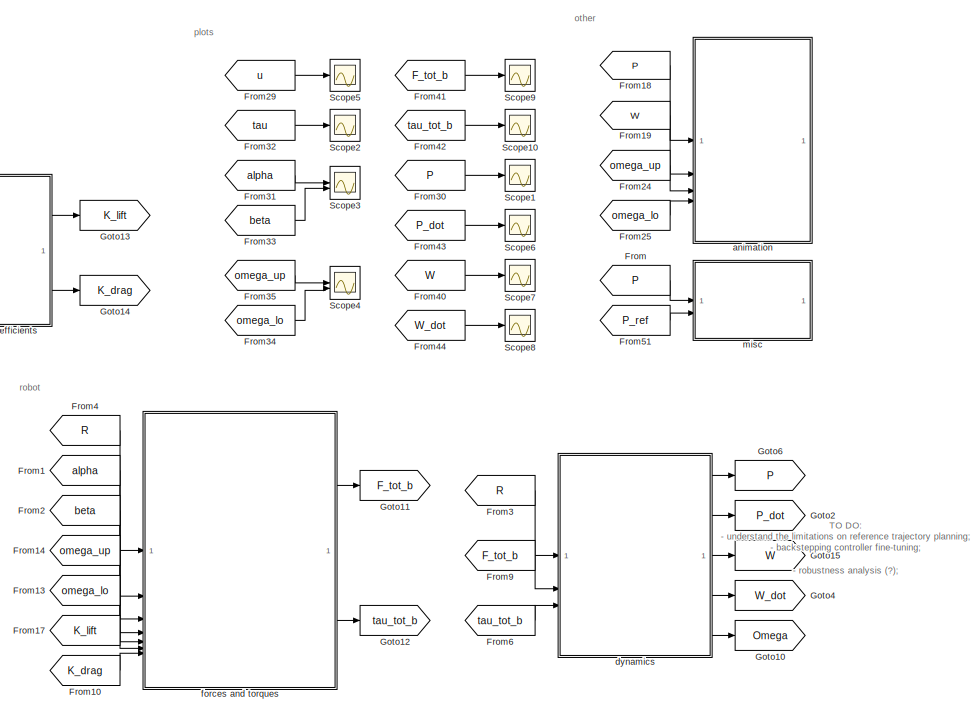
[diagram: root canvas - part 1/4, top center region]
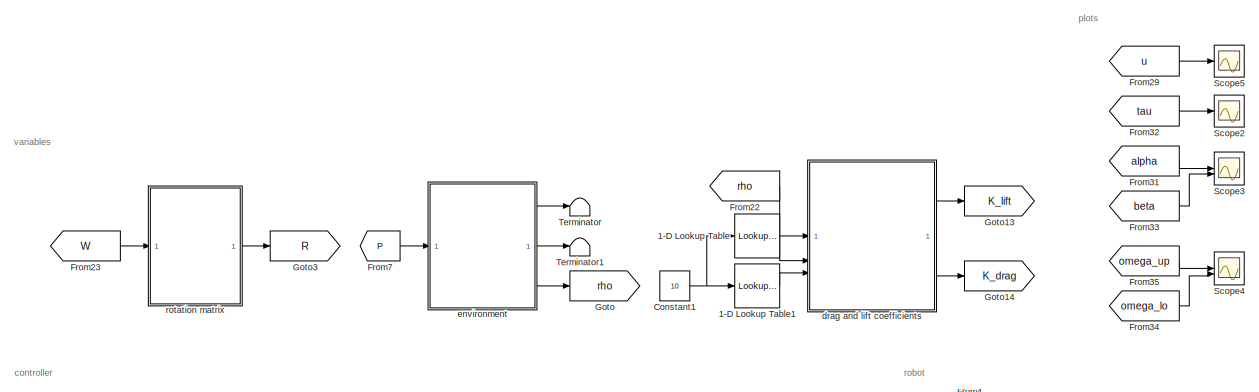
[diagram: root canvas - part 2/4, top center region]
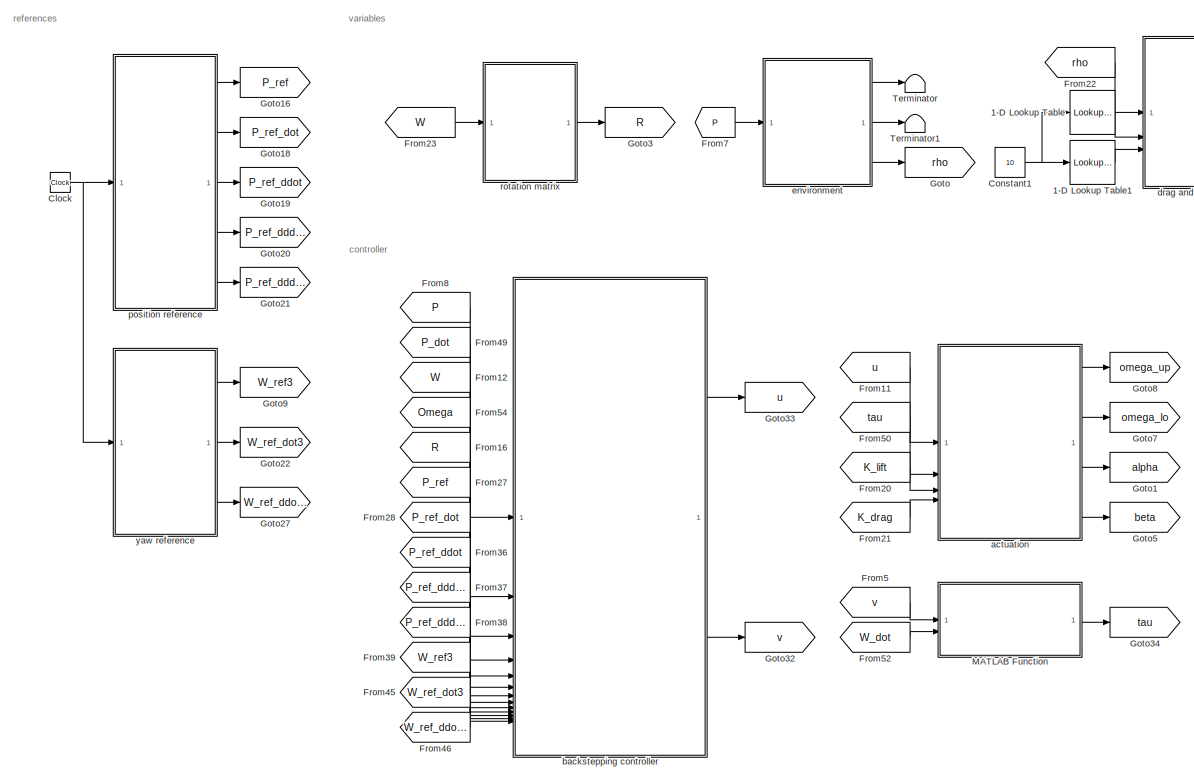
[diagram: root canvas - part 3/4, middle left region]
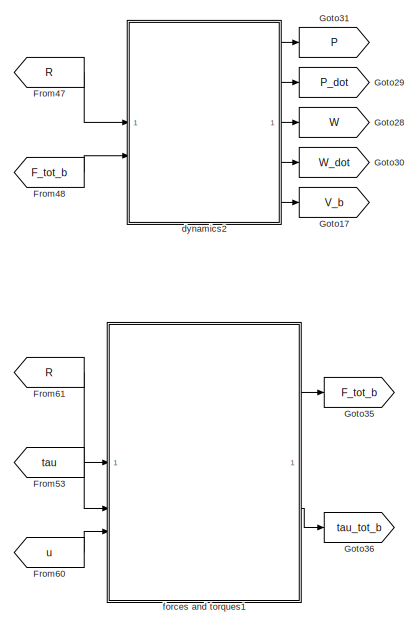
[diagram: root canvas - part 4/4, bottom right region]
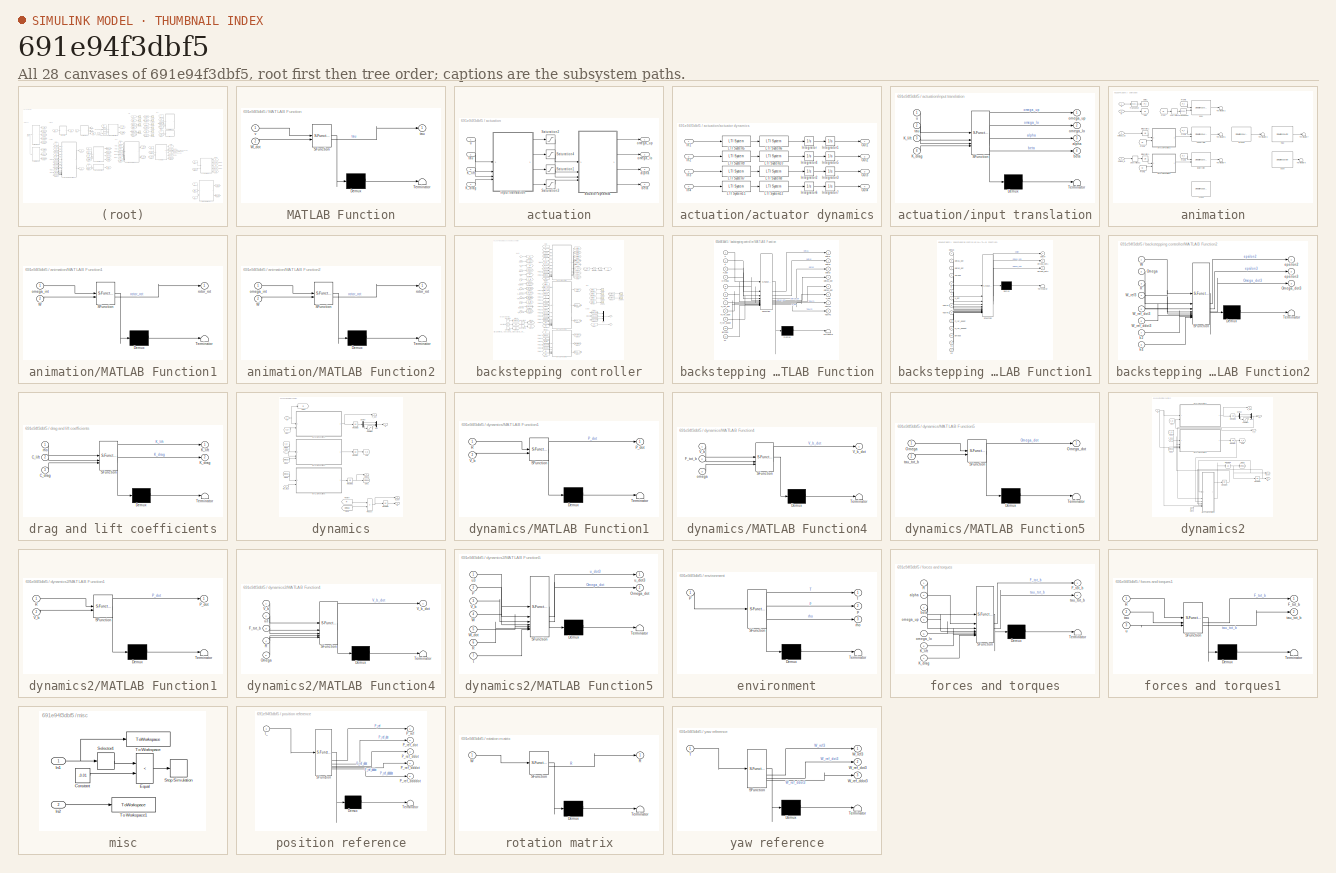
[diagram: thumbnail index - all 28 canvases of the model, root first then tree order]
MODEL slx_691e94f3dbf5
KIND model
CONFIG AbsTol = auto
CONFIG EnableMultiTasking = off
CONFIG FixedStep = 0.001
CONFIG MaxStep = auto
CONFIG MinStep = auto
CONFIG RelTol = 1e-3
CONFIG SampleTimeConstraint = Unconstrained
CONFIG SolverName = VariableStepAuto
CONFIG StartTime = 0.0
CONFIG StopTime = 1000
BLOCK [Lookup_n-D] 1-D Lookup Table
  BreakpointsForDimension1 = NACA2412.CL(:,1)
  InputPortMap = u0
  InternalRulePriority = Speed
  NumberOfTableDimensions = 1
  RndMeth = Simplest
  Table = NACA2412.CL(:,2)
BLOCK [Lookup_n-D] 1-D Lookup Table1
  BreakpointsForDimension1 = NACA2412.CD(:,1)
  InputPortMap = u0
  InternalRulePriority = Speed
  NumberOfTableDimensions = 1
  RndMeth = Simplest
  Table = NACA2412.CD(:,2)
BLOCK [Clock] Clock
BLOCK [Constant] Constant1
  Value = 10
BLOCK [From] From
  GotoTag = P
BLOCK [From] From1
  GotoTag = alpha
BLOCK [From] From10
  GotoTag = K_drag
BLOCK [From] From11
  GotoTag = u
BLOCK [From] From12
  GotoTag = W
BLOCK [From] From13
  GotoTag = omega_lo
BLOCK [From] From14
  GotoTag = omega_up
BLOCK [From] From16
  GotoTag = R
BLOCK [From] From17
  GotoTag = K_lift
BLOCK [From] From18
  GotoTag = P
BLOCK [From] From19
  GotoTag = W
BLOCK [From] From2
  GotoTag = beta
BLOCK [From] From20
  GotoTag = K_lift
BLOCK [From] From21
  GotoTag = K_drag
BLOCK [From] From22
  GotoTag = rho
BLOCK [From] From23
  GotoTag = W
BLOCK [From] From24
  GotoTag = omega_up
BLOCK [From] From25
  GotoTag = omega_lo
BLOCK [From] From27
  GotoTag = P_ref
BLOCK [From] From28
  GotoTag = P_ref_dot
BLOCK [From] From29
  GotoTag = u
BLOCK [From] From3
  GotoTag = R
BLOCK [From] From30
  GotoTag = P
BLOCK [From] From31
  GotoTag = alpha
BLOCK [From] From32
  GotoTag = tau
BLOCK [From] From33
  GotoTag = beta
BLOCK [From] From34
  GotoTag = omega_lo
BLOCK [From] From35
  GotoTag = omega_up
BLOCK [From] From36
  GotoTag = P_ref_ddot
BLOCK [From] From37
  GotoTag = P_ref_dddot
BLOCK [From] From38
  GotoTag = P_ref_ddddot
BLOCK [From] From39
  GotoTag = W_ref3
BLOCK [From] From4
  GotoTag = R
BLOCK [From] From40
  GotoTag = W
BLOCK [From] From41
  GotoTag = F_tot_b
BLOCK [From] From42
  GotoTag = tau_tot_b
BLOCK [From] From43
  GotoTag = P_dot
BLOCK [From] From44
  GotoTag = W_dot
BLOCK [From] From45
  GotoTag = W_ref_dot3
BLOCK [From] From46
  GotoTag = W_ref_ddot3
BLOCK [From] From47
  Commented = on
  GotoTag = R
BLOCK [From] From48
  Commented = on
  GotoTag = F_tot_b
BLOCK [From] From49
  GotoTag = P_dot
BLOCK [From] From5
  GotoTag = v
BLOCK [From] From50
  GotoTag = tau
BLOCK [From] From51
  GotoTag = P_ref
BLOCK [From] From52
  GotoTag = W_dot
BLOCK [From] From53
  Commented = on
  GotoTag = tau
BLOCK [From] From54
  GotoTag = Omega
BLOCK [From] From6
  GotoTag = tau_tot_b
BLOCK [From] From60
  Commented = on
  GotoTag = u
BLOCK [From] From61
  Commented = on
  GotoTag = R
BLOCK [From] From7
  GotoTag = P
BLOCK [From] From8
  GotoTag = P
BLOCK [From] From9
  GotoTag = F_tot_b
BLOCK [Goto] Goto
  GotoTag = rho
BLOCK [Goto] Goto1
  GotoTag = alpha
BLOCK [Goto] Goto10
  GotoTag = Omega
BLOCK [Goto] Goto11
  GotoTag = F_tot_b
BLOCK [Goto] Goto12
  GotoTag = tau_tot_b
BLOCK [Goto] Goto13
  GotoTag = K_lift
BLOCK [Goto] Goto14
  GotoTag = K_drag
BLOCK [Goto] Goto15
  GotoTag = W
BLOCK [Goto] Goto16
  GotoTag = P_ref
BLOCK [Goto] Goto17
  Commented = on
  GotoTag = V_b
BLOCK [Goto] Goto18
  GotoTag = P_ref_dot
BLOCK [Goto] Goto19
  GotoTag = P_ref_ddot
BLOCK [Goto] Goto2
  GotoTag = P_dot
BLOCK [Goto] Goto20
  GotoTag = P_ref_dddot
BLOCK [Goto] Goto21
  GotoTag = P_ref_ddddot
BLOCK [Goto] Goto22
  GotoTag = W_ref_dot3
BLOCK [Goto] Goto27
  GotoTag = W_ref_ddot3
BLOCK [Goto] Goto28
  Commented = on
  GotoTag = W
BLOCK [Goto] Goto29
  Commented = on
  GotoTag = P_dot
BLOCK [Goto] Goto3
  GotoTag = R
BLOCK [Goto] Goto30
  Commented = on
  GotoTag = W_dot
BLOCK [Goto] Goto31
  Commented = on
  GotoTag = P
BLOCK [Goto] Goto32
  GotoTag = v
BLOCK [Goto] Goto33
  GotoTag = u
BLOCK [Goto] Goto34
  GotoTag = tau
BLOCK [Goto] Goto35
  Commented = on
  GotoTag = F_tot_b
BLOCK [Goto] Goto36
  Commented = on
  GotoTag = tau_tot_b
BLOCK [Goto] Goto4
  GotoTag = W_dot
BLOCK [Goto] Goto5
  GotoTag = beta
BLOCK [Goto] Goto6
  GotoTag = P
BLOCK [Goto] Goto7
  GotoTag = omega_lo
BLOCK [Goto] Goto8
  GotoTag = omega_up
BLOCK [Goto] Goto9
  GotoTag = W_ref3
BLOCK [SubSystem] MATLAB Function
  ErrorFcn = Stateflow.Translate.translate
  PermitHierarchicalResolution = ExplicitOnly
  SFBlockType = MATLAB Function
  TreatAsAtomicUnit = on
BLOCK [Demux] MATLAB Function/ Demux 
  Outputs = 1
BLOCK [S-Function] MATLAB Function/ SFunction 
  EnableBusSupport = on
  FunctionName = sf_sfun
  Parameters = init
  PortCounts = [2 2]
  SFcnIsStateOwnerBlock = off
  SFunctionDeploymentMode = off
  Tag = Stateflow S-Function 22
BLOCK [Terminator] MATLAB Function/ Terminator 
BLOCK [Inport] MATLAB Function/W_dot
  Port = 2
BLOCK [Outport] MATLAB Function/tau
BLOCK [Inport] MATLAB Function/v
BLOCK [Scope] Scope1
  Floating = off
  NumInputPorts = 1
  ScopeSpecificationString = Simulink.scopes.TimeScopeBlockCfg('CurrentConfiguration', extmgr.ConfigurationSet(extmgr.Configuration('Core','General UI',true),extmgr.Configuration('Core','Source UI',true),extmgr.Configuration('Sources','WiredSimulink',true,'DataLoggingVariableName','ScopeData1'),extmgr.Configuration('Visuals','Time Domain',true,'SerializedDisplays',{struct('MinYLimReal','-4.41116','MaxYLimReal','3.81144','YLab...<+1540ch>
BLOCK [Scope] Scope10
  Floating = off
  NumInputPorts = 1
  ScopeSpecificationString = Simulink.scopes.TimeScopeBlockCfg('CurrentConfiguration', extmgr.ConfigurationSet(extmgr.Configuration('Core','General UI',true),extmgr.Configuration('Core','Source UI',true),extmgr.Configuration('Sources','WiredSimulink',true,'DataLoggingVariableName','ScopeData5'),extmgr.Configuration('Visuals','Time Domain',true,'SerializedDisplays',{struct('MinYLimReal','-4.14869','MaxYLimReal','5.40585','YLab...<+1477ch>
BLOCK [Scope] Scope2
  Floating = off
  NumInputPorts = 1
  ScopeSpecificationString = Simulink.scopes.TimeScopeBlockCfg('CurrentConfiguration', extmgr.ConfigurationSet(extmgr.Configuration('Core','General UI',true),extmgr.Configuration('Core','Source UI',true),extmgr.Configuration('Sources','WiredSimulink',true,'DataLoggingVariableName','ScopeData2'),extmgr.Configuration('Visuals','Time Domain',true,'SerializedDisplays',{struct('MinYLimReal','-2.34424','MaxYLimReal','4.68519','YLab...<+1527ch>
BLOCK [Scope] Scope3
  Floating = off
  NumInputPorts = 2
  ScopeSpecificationString = Simulink.scopes.TimeScopeBlockCfg('CurrentConfiguration', extmgr.ConfigurationSet(extmgr.Configuration('Core','General UI',true),extmgr.Configuration('Core','Source UI',true),extmgr.Configuration('Sources','WiredSimulink',true,'DataLoggingVariableName','ScopeData1'),extmgr.Configuration('Visuals','Time Domain',true,'SerializedDisplays',{struct('MinYLimReal','0.16934','MaxYLimReal','0.18107','YLabe...<+1523ch>
BLOCK [Scope] Scope4
  Floating = off
  NumInputPorts = 2
  ScopeSpecificationString = Simulink.scopes.TimeScopeBlockCfg('CurrentConfiguration', extmgr.ConfigurationSet(extmgr.Configuration('Core','General UI',true),extmgr.Configuration('Core','Source UI',true),extmgr.Configuration('Sources','WiredSimulink',true,'DataLoggingVariableName','ScopeData4'),extmgr.Configuration('Visuals','Time Domain',true,'SerializedDisplays',{struct('MinYLimReal','82.26502','MaxYLimReal','88.06646','YLa...<+1509ch>
BLOCK [Scope] Scope5
  Floating = off
  NumInputPorts = 1
  ScopeSpecificationString = Simulink.scopes.TimeScopeBlockCfg('CurrentConfiguration', extmgr.ConfigurationSet(extmgr.Configuration('Core','General UI',true),extmgr.Configuration('Core','Source UI',true),extmgr.Configuration('Sources','WiredSimulink',true,'DataLoggingVariableName','ScopeData1'),extmgr.Configuration('Visuals','Time Domain',true,'SerializedDisplays',{struct('MinYLimReal','-1.06496','MaxYLimReal','9.6846','YLabe...<+1583ch>
BLOCK [Scope] Scope6
  Floating = off
  NumInputPorts = 1
  ScopeSpecificationString = Simulink.scopes.TimeScopeBlockCfg('CurrentConfiguration', extmgr.ConfigurationSet(extmgr.Configuration('Core','General UI',true),extmgr.Configuration('Core','Source UI',true),extmgr.Configuration('Sources','WiredSimulink',true,'DataLoggingVariableName','ScopeData1'),extmgr.Configuration('Visuals','Time Domain',true,'SerializedDisplays',{struct('MinYLimReal','-5.75962','MaxYLimReal','4.96232','YLab...<+1436ch>
BLOCK [Scope] Scope7
  Floating = off
  NumInputPorts = 1
  ScopeSpecificationString = Simulink.scopes.TimeScopeBlockCfg('CurrentConfiguration', extmgr.ConfigurationSet(extmgr.Configuration('Core','General UI',true),extmgr.Configuration('Core','Source UI',true),extmgr.Configuration('Sources','WiredSimulink',true,'DataLoggingVariableName','ScopeData2'),extmgr.Configuration('Visuals','Time Domain',true,'SerializedDisplays',{struct('MinYLimReal','-0.49278','MaxYLimReal','0.4002','YLabe...<+1540ch>
BLOCK [Scope] Scope8
  Floating = off
  NumInputPorts = 1
  ScopeSpecificationString = Simulink.scopes.TimeScopeBlockCfg('CurrentConfiguration', extmgr.ConfigurationSet(extmgr.Configuration('Core','General UI',true),extmgr.Configuration('Core','Source UI',true),extmgr.Configuration('Sources','WiredSimulink',true,'DataLoggingVariableName','ScopeData3'),extmgr.Configuration('Visuals','Time Domain',true,'SerializedDisplays',{struct('MinYLimReal','-0.54301','MaxYLimReal','2.08177','YLab...<+1445ch>
BLOCK [Scope] Scope9
  Floating = off
  NumInputPorts = 1
  ScopeSpecificationString = Simulink.scopes.TimeScopeBlockCfg('CurrentConfiguration', extmgr.ConfigurationSet(extmgr.Configuration('Core','General UI',true),extmgr.Configuration('Core','Source UI',true),extmgr.Configuration('Sources','WiredSimulink',true,'DataLoggingVariableName','ScopeData4'),extmgr.Configuration('Visuals','Time Domain',true,'SerializedDisplays',{struct('MinYLimReal','-206.69435','MaxYLimReal','105.59473','...<+1522ch>
BLOCK [Terminator] Terminator
BLOCK [Terminator] Terminator1
BLOCK [SubSystem] actuation
BLOCK [Inport] actuation/K_drag
  Port = 4
BLOCK [Inport] actuation/K_lift
  Port = 3
BLOCK [Saturate] actuation/Saturation1
  LowerLimit = -init.alpha_max
  UpperLimit = init.alpha_max
  ZeroCross = off
BLOCK [Saturate] actuation/Saturation2
  LowerLimit = 0
  UpperLimit = init.omega_max
  ZeroCross = off
BLOCK [Saturate] actuation/Saturation3
  LowerLimit = -init.alpha_max
  UpperLimit = init.alpha_max
  ZeroCross = off
BLOCK [Saturate] actuation/Saturation4
  LowerLimit = 0
  UpperLimit = init.omega_max
  ZeroCross = off
BLOCK [SubSystem] actuation/actuator dynamics
BLOCK [Inport] actuation/actuator dynamics/In1
BLOCK [Inport] actuation/actuator dynamics/In2
  Port = 2
BLOCK [Inport] actuation/actuator dynamics/In3
  Port = 3
BLOCK [Inport] actuation/actuator dynamics/In4
  Port = 4
BLOCK [Integrator] actuation/actuator dynamics/Integrator
BLOCK [Integrator] actuation/actuator dynamics/Integrator1
BLOCK [Integrator] actuation/actuator dynamics/Integrator2
BLOCK [Integrator] actuation/actuator dynamics/Integrator3
BLOCK [Integrator] actuation/actuator dynamics/Integrator4
BLOCK [Integrator] actuation/actuator dynamics/Integrator5
BLOCK [Integrator] actuation/actuator dynamics/Integrator6
BLOCK [Integrator] actuation/actuator dynamics/Integrator7
BLOCK [Reference] actuation/actuator dynamics/LTI System10  REF=cstblocks/LTI System
  SourceBlock = cstblocks/LTI System
  SourceType = LTI Block
BLOCK [Reference] actuation/actuator dynamics/LTI System11  REF=cstblocks/LTI System
  SourceBlock = cstblocks/LTI System
  SourceType = LTI Block
BLOCK [Reference] actuation/actuator dynamics/LTI System12  REF=cstblocks/LTI System
  SourceBlock = cstblocks/LTI System
  SourceType = LTI Block
BLOCK [Reference] actuation/actuator dynamics/LTI System5  REF=cstblocks/LTI System
  SourceBlock = cstblocks/LTI System
  SourceType = LTI Block
BLOCK [Reference] actuation/actuator dynamics/LTI System6  REF=cstblocks/LTI System
  SourceBlock = cstblocks/LTI System
  SourceType = LTI Block
BLOCK [Reference] actuation/actuator dynamics/LTI System7  REF=cstblocks/LTI System
  SourceBlock = cstblocks/LTI System
  SourceType = LTI Block
BLOCK [Reference] actuation/actuator dynamics/LTI System8  REF=cstblocks/LTI System
  SourceBlock = cstblocks/LTI System
  SourceType = LTI Block
BLOCK [Reference] actuation/actuator dynamics/LTI System9  REF=cstblocks/LTI System
  SourceBlock = cstblocks/LTI System
  SourceType = LTI Block
BLOCK [Outport] actuation/actuator dynamics/Out1
BLOCK [Outport] actuation/actuator dynamics/Out2
  Port = 2
BLOCK [Outport] actuation/actuator dynamics/Out3
  Port = 3
BLOCK [Outport] actuation/actuator dynamics/Out4
  Port = 4
BLOCK [Outport] actuation/alpha
  Port = 3
BLOCK [Outport] actuation/beta
  Port = 4
BLOCK [SubSystem] actuation/input translation
  ErrorFcn = Stateflow.Translate.translate
  PermitHierarchicalResolution = ExplicitOnly
  SFBlockType = MATLAB Function
  TreatAsAtomicUnit = on
BLOCK [Demux] actuation/input translation/ Demux 
  Outputs = 1
BLOCK [S-Function] actuation/input translation/ SFunction 
  EnableBusSupport = on
  FunctionName = sf_sfun
  Parameters = init
  PortCounts = [4 5]
  SFcnIsStateOwnerBlock = off
  SFunctionDeploymentMode = off
  Tag = Stateflow S-Function 8
BLOCK [Terminator] actuation/input translation/ Terminator 
BLOCK [Inport] actuation/input translation/K_drag
  Port = 4
BLOCK [Inport] actuation/input translation/K_lift
  Port = 3
BLOCK [Outport] actuation/input translation/alpha
  Port = 3
BLOCK [Outport] actuation/input translation/beta
  Port = 4
BLOCK [Outport] actuation/input translation/omega_lo
  Port = 2
BLOCK [Outport] actuation/input translation/omega_up
BLOCK [Inport] actuation/input translation/tau
  Port = 2
BLOCK [Inport] actuation/input translation/u
BLOCK [Outport] actuation/omega_lo
  Port = 2
BLOCK [Outport] actuation/omega_up
BLOCK [Inport] actuation/tau
  Port = 2
BLOCK [Inport] actuation/u
BLOCK [SubSystem] animation
BLOCK [From] animation/From
  GotoTag = W
BLOCK [From] animation/From1
  GotoTag = W
BLOCK [From] animation/From2
  GotoTag = W
BLOCK [From] animation/From3
  GotoTag = P_t
BLOCK [From] animation/From4
  GotoTag = P_t
BLOCK [From] animation/From5
  GotoTag = P_t
BLOCK [Goto] animation/Goto
  GotoTag = W
BLOCK [Goto] animation/Goto1
  GotoTag = P_t
BLOCK [Integrator] animation/Integrator1
  WrapState = on
BLOCK [Integrator] animation/Integrator2
  WrapState = on
BLOCK [SubSystem] animation/MATLAB Function1
  ErrorFcn = Stateflow.Translate.translate
  PermitHierarchicalResolution = ExplicitOnly
  SFBlockType = MATLAB Function
  TreatAsAtomicUnit = on
BLOCK [Demux] animation/MATLAB Function1/ Demux 
  Outputs = 1
BLOCK [S-Function] animation/MATLAB Function1/ SFunction 
  EnableBusSupport = on
  FunctionName = sf_sfun
  PortCounts = [2 2]
  SFcnIsStateOwnerBlock = off
  SFunctionDeploymentMode = off
  Tag = Stateflow S-Function 10
BLOCK [Terminator] animation/MATLAB Function1/ Terminator 
BLOCK [Inport] animation/MATLAB Function1/W
  Port = 2
BLOCK [Inport] animation/MATLAB Function1/omega_int
BLOCK [Outport] animation/MATLAB Function1/rotor_rot
BLOCK [SubSystem] animation/MATLAB Function2
  ErrorFcn = Stateflow.Translate.translate
  PermitHierarchicalResolution = ExplicitOnly
  SFBlockType = MATLAB Function
  TreatAsAtomicUnit = on
BLOCK [Demux] animation/MATLAB Function2/ Demux 
  Outputs = 1
BLOCK [S-Function] animation/MATLAB Function2/ SFunction 
  EnableBusSupport = on
  FunctionName = sf_sfun
  PortCounts = [2 2]
  SFcnIsStateOwnerBlock = off
  SFunctionDeploymentMode = off
  Tag = Stateflow S-Function 11
BLOCK [Terminator] animation/MATLAB Function2/ Terminator 
BLOCK [Inport] animation/MATLAB Function2/W
  Port = 2
BLOCK [Inport] animation/MATLAB Function2/omega_int
BLOCK [Outport] animation/MATLAB Function2/rotor_rot
BLOCK [Inport] animation/P
BLOCK [Terminator] animation/Terminator2
BLOCK [Terminator] animation/Terminator3
BLOCK [Terminator] animation/Terminator4
BLOCK [Terminator] animation/Terminator5
BLOCK [Terminator] animation/Terminator6
  Commented = on
BLOCK [Terminator] animation/Terminator7
BLOCK [Math] animation/Transpose
  Operator = transpose
BLOCK [Math] animation/Transpose1
  Operator = transpose
BLOCK [UnaryMinus] animation/Unary Minus
BLOCK [UnaryMinus] animation/Unary Minus1
BLOCK [Inport] animation/W
  Port = 2
BLOCK [Reference] animation/base  REF=sim3dlib/Simulation 3D Actor
  Commented = on
  LibrarySourceBlock = sl3dlib/Simulation 3D/Simulation 3D Actor
  SourceBlock = sim3dlib/Simulation 3D Actor
  SourceType = Simulation 3D Actor
BLOCK [Reference] animation/body  REF=sim3dlib/Simulation 3D Actor
  LibrarySourceBlock = sl3dlib/Simulation 3D/Simulation 3D Actor
  SourceBlock = sim3dlib/Simulation 3D Actor
  SourceType = Simulation 3D Actor
BLOCK [Reference] animation/ground  REF=sim3dlib/Simulation 3D Actor
  LibrarySourceBlock = sl3dlib/Simulation 3D/Simulation 3D Actor
  SourceBlock = sim3dlib/Simulation 3D Actor
  SourceType = Simulation 3D Actor
BLOCK [Reference] animation/lower rotor  REF=sim3dlib/Simulation 3D Actor
  LibrarySourceBlock = sl3dlib/Simulation 3D/Simulation 3D Actor
  SourceBlock = sim3dlib/Simulation 3D Actor
  SourceType = Simulation 3D Actor
BLOCK [Inport] animation/omega_lo
  Port = 4
BLOCK [Inport] animation/omega_up
  Port = 3
BLOCK [Reference] animation/scene  REF=sim3dlib/Simulation 3D Scene Configuration
  LibrarySourceBlock = sl3dlib/Simulation 3D/Simulation 3D Scene Configuration
  Priority = 0
  SourceBlock = sim3dlib/Simulation 3D Scene Configuration
  SourceType = Simulation 3D Scene Configuration
BLOCK [Reference] animation/triad  REF=sim3dlib/Simulation 3D Actor
  LibrarySourceBlock = sl3dlib/Simulation 3D/Simulation 3D Actor
  SourceBlock = sim3dlib/Simulation 3D Actor
  SourceType = Simulation 3D Actor
BLOCK [Reference] animation/upper rotor  REF=sim3dlib/Simulation 3D Actor
  LibrarySourceBlock = sl3dlib/Simulation 3D/Simulation 3D Actor
  SourceBlock = sim3dlib/Simulation 3D Actor
  SourceType = Simulation 3D Actor
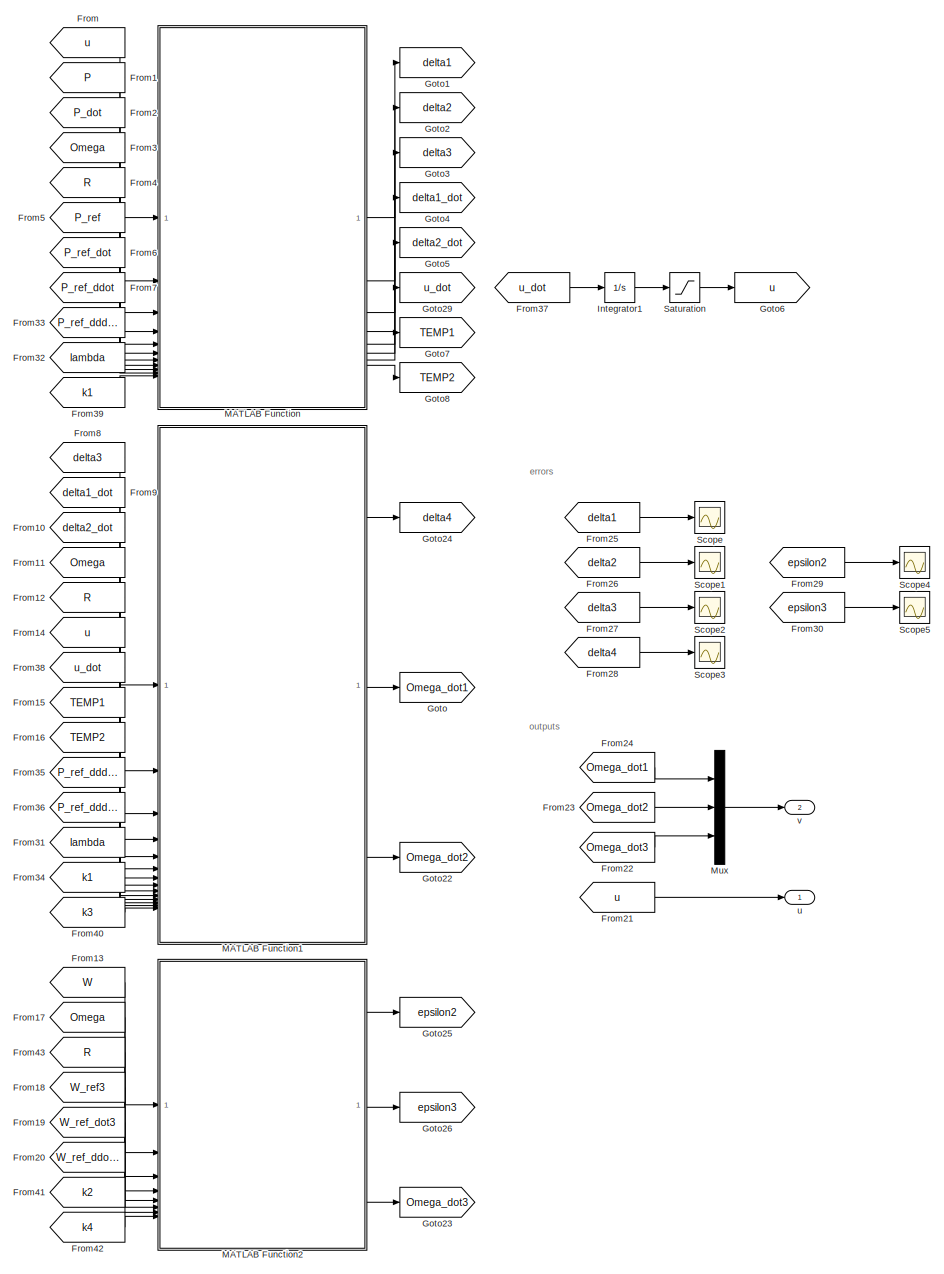
[diagram: backstepping controller - part 1/2, center side, full height]
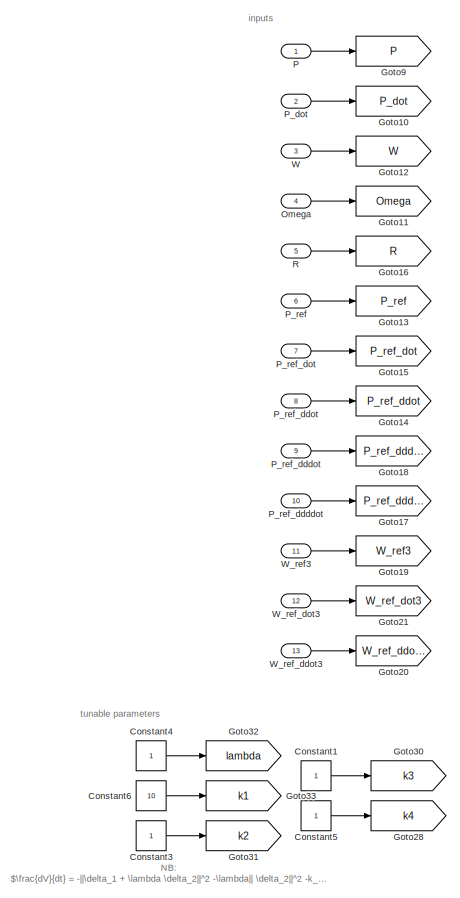
[diagram: backstepping controller - part 2/2, middle left region]
BLOCK [SubSystem] backstepping controller
BLOCK [Constant] backstepping controller/Constant1
BLOCK [Constant] backstepping controller/Constant3
BLOCK [Constant] backstepping controller/Constant4
BLOCK [Constant] backstepping controller/Constant5
BLOCK [Constant] backstepping controller/Constant6
  Value = 10
BLOCK [From] backstepping controller/From
  GotoTag = u
BLOCK [From] backstepping controller/From1
  GotoTag = P
BLOCK [From] backstepping controller/From10
  GotoTag = delta2_dot
BLOCK [From] backstepping controller/From11
  GotoTag = Omega
BLOCK [From] backstepping controller/From12
  GotoTag = R
BLOCK [From] backstepping controller/From13
  GotoTag = W
BLOCK [From] backstepping controller/From14
  GotoTag = u
BLOCK [From] backstepping controller/From15
  GotoTag = TEMP1
BLOCK [From] backstepping controller/From16
  GotoTag = TEMP2
BLOCK [From] backstepping controller/From17
  GotoTag = Omega
BLOCK [From] backstepping controller/From18
  GotoTag = W_ref3
BLOCK [From] backstepping controller/From19
  GotoTag = W_ref_dot3
BLOCK [From] backstepping controller/From2
  GotoTag = P_dot
BLOCK [From] backstepping controller/From20
  GotoTag = W_ref_ddot3
BLOCK [From] backstepping controller/From21
  GotoTag = u
BLOCK [From] backstepping controller/From22
  GotoTag = Omega_dot3
BLOCK [From] backstepping controller/From23
  GotoTag = Omega_dot2
BLOCK [From] backstepping controller/From24
  GotoTag = Omega_dot1
BLOCK [From] backstepping controller/From25
  GotoTag = delta1
BLOCK [From] backstepping controller/From26
  GotoTag = delta2
BLOCK [From] backstepping controller/From27
  GotoTag = delta3
BLOCK [From] backstepping controller/From28
  GotoTag = delta4
BLOCK [From] backstepping controller/From29
  GotoTag = epsilon2
BLOCK [From] backstepping controller/From3
  GotoTag = Omega
BLOCK [From] backstepping controller/From30
  GotoTag = epsilon3
BLOCK [From] backstepping controller/From31
  GotoTag = lambda
BLOCK [From] backstepping controller/From32
  GotoTag = lambda
BLOCK [From] backstepping controller/From33
  GotoTag = P_ref_dddot
BLOCK [From] backstepping controller/From34
  GotoTag = k1
BLOCK [From] backstepping controller/From35
  GotoTag = P_ref_dddot
BLOCK [From] backstepping controller/From36
  GotoTag = P_ref_ddddot
BLOCK [From] backstepping controller/From37
  GotoTag = u_dot
BLOCK [From] backstepping controller/From38
  GotoTag = u_dot
BLOCK [From] backstepping controller/From39
  GotoTag = k1
BLOCK [From] backstepping controller/From4
  GotoTag = R
BLOCK [From] backstepping controller/From40
  GotoTag = k3
BLOCK [From] backstepping controller/From41
  GotoTag = k2
BLOCK [From] backstepping controller/From42
  GotoTag = k4
BLOCK [From] backstepping controller/From43
  GotoTag = R
BLOCK [From] backstepping controller/From5
  GotoTag = P_ref
BLOCK [From] backstepping controller/From6
  GotoTag = P_ref_dot
BLOCK [From] backstepping controller/From7
  GotoTag = P_ref_ddot
BLOCK [From] backstepping controller/From8
  GotoTag = delta3
BLOCK [From] backstepping controller/From9
  GotoTag = delta1_dot
BLOCK [Goto] backstepping controller/Goto
  GotoTag = Omega_dot1
BLOCK [Goto] backstepping controller/Goto1
  GotoTag = delta1
BLOCK [Goto] backstepping controller/Goto10
  GotoTag = P_dot
BLOCK [Goto] backstepping controller/Goto11
  GotoTag = Omega
BLOCK [Goto] backstepping controller/Goto12
  GotoTag = W
BLOCK [Goto] backstepping controller/Goto13
  GotoTag = P_ref
BLOCK [Goto] backstepping controller/Goto14
  GotoTag = P_ref_ddot
BLOCK [Goto] backstepping controller/Goto15
  GotoTag = P_ref_dot
BLOCK [Goto] backstepping controller/Goto16
  GotoTag = R
BLOCK [Goto] backstepping controller/Goto17
  GotoTag = P_ref_ddddot
BLOCK [Goto] backstepping controller/Goto18
  GotoTag = P_ref_dddot
BLOCK [Goto] backstepping controller/Goto19
  GotoTag = W_ref3
BLOCK [Goto] backstepping controller/Goto2
  GotoTag = delta2
BLOCK [Goto] backstepping controller/Goto20
  GotoTag = W_ref_ddot3
BLOCK [Goto] backstepping controller/Goto21
  GotoTag = W_ref_dot3
BLOCK [Goto] backstepping controller/Goto22
  GotoTag = Omega_dot2
BLOCK [Goto] backstepping controller/Goto23
  GotoTag = Omega_dot3
BLOCK [Goto] backstepping controller/Goto24
  GotoTag = delta4
BLOCK [Goto] backstepping controller/Goto25
  GotoTag = epsilon2
BLOCK [Goto] backstepping controller/Goto26
  GotoTag = epsilon3
BLOCK [Goto] backstepping controller/Goto28
  GotoTag = k4
BLOCK [Goto] backstepping controller/Goto29
  GotoTag = u_dot
BLOCK [Goto] backstepping controller/Goto3
  GotoTag = delta3
BLOCK [Goto] backstepping controller/Goto30
  GotoTag = k3
BLOCK [Goto] backstepping controller/Goto31
  GotoTag = k2
BLOCK [Goto] backstepping controller/Goto32
  GotoTag = lambda
BLOCK [Goto] backstepping controller/Goto33
  GotoTag = k1
BLOCK [Goto] backstepping controller/Goto4
  GotoTag = delta1_dot
BLOCK [Goto] backstepping controller/Goto5
  GotoTag = delta2_dot
BLOCK [Goto] backstepping controller/Goto6
  GotoTag = u
BLOCK [Goto] backstepping controller/Goto7
  GotoTag = TEMP1
BLOCK [Goto] backstepping controller/Goto8
  GotoTag = TEMP2
BLOCK [Goto] backstepping controller/Goto9
  GotoTag = P
BLOCK [Integrator] backstepping controller/Integrator1
  InitialCondition = [0; 0; -init.F_grav_i(3)]
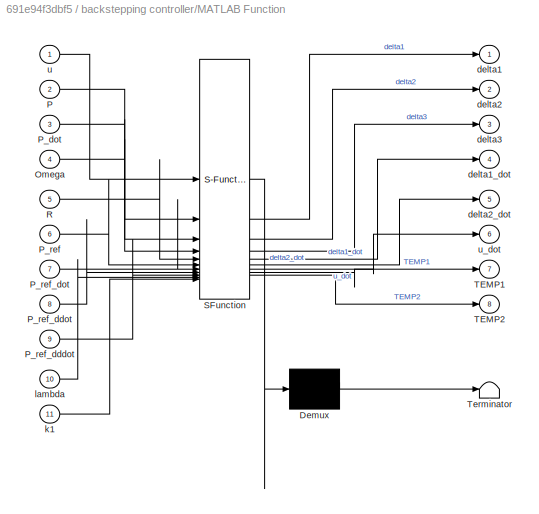
BLOCK [SubSystem] backstepping controller/MATLAB Function
  ErrorFcn = Stateflow.Translate.translate
  PermitHierarchicalResolution = ExplicitOnly
  SFBlockType = MATLAB Function
  TreatAsAtomicUnit = on
BLOCK [Demux] backstepping controller/MATLAB Function/ Demux 
  Outputs = 1
BLOCK [S-Function] backstepping controller/MATLAB Function/ SFunction 
  EnableBusSupport = on
  FunctionName = sf_sfun
  Parameters = init
  PortCounts = [11 9]
  SFcnIsStateOwnerBlock = off
  SFunctionDeploymentMode = off
  Tag = Stateflow S-Function 14
BLOCK [Terminator] backstepping controller/MATLAB Function/ Terminator 
BLOCK [Inport] backstepping controller/MATLAB Function/Omega
  Port = 4
BLOCK [Inport] backstepping controller/MATLAB Function/P
  Port = 2
BLOCK [Inport] backstepping controller/MATLAB Function/P_dot
  Port = 3
BLOCK [Inport] backstepping controller/MATLAB Function/P_ref
  Port = 6
BLOCK [Inport] backstepping controller/MATLAB Function/P_ref_dddot
  Port = 9
BLOCK [Inport] backstepping controller/MATLAB Function/P_ref_ddot
  Port = 8
BLOCK [Inport] backstepping controller/MATLAB Function/P_ref_dot
  Port = 7
BLOCK [Inport] backstepping controller/MATLAB Function/R
  Port = 5
BLOCK [Outport] backstepping controller/MATLAB Function/TEMP1
  Port = 7
BLOCK [Outport] backstepping controller/MATLAB Function/TEMP2
  Port = 8
BLOCK [Outport] backstepping controller/MATLAB Function/delta1
BLOCK [Outport] backstepping controller/MATLAB Function/delta1_dot
  Port = 4
BLOCK [Outport] backstepping controller/MATLAB Function/delta2
  Port = 2
BLOCK [Outport] backstepping controller/MATLAB Function/delta2_dot
  Port = 5
BLOCK [Outport] backstepping controller/MATLAB Function/delta3
  Port = 3
BLOCK [Inport] backstepping controller/MATLAB Function/k1
  Port = 11
BLOCK [Inport] backstepping controller/MATLAB Function/lambda
  Port = 10
BLOCK [Inport] backstepping controller/MATLAB Function/u
BLOCK [Outport] backstepping controller/MATLAB Function/u_dot
  Port = 6
BLOCK [SubSystem] backstepping controller/MATLAB Function1
  ErrorFcn = Stateflow.Translate.translate
  PermitHierarchicalResolution = ExplicitOnly
  SFBlockType = MATLAB Function
  TreatAsAtomicUnit = on
BLOCK [Demux] backstepping controller/MATLAB Function1/ Demux 
  Outputs = 1
BLOCK [S-Function] backstepping controller/MATLAB Function1/ SFunction 
  EnableBusSupport = on
  FunctionName = sf_sfun
  Parameters = init
  PortCounts = [14 4]
  SFcnIsStateOwnerBlock = off
  SFunctionDeploymentMode = off
  Tag = Stateflow S-Function 15
BLOCK [Terminator] backstepping controller/MATLAB Function1/ Terminator 
BLOCK [Inport] backstepping controller/MATLAB Function1/Omega
  Port = 4
BLOCK [Outport] backstepping controller/MATLAB Function1/Omega_dot1
  Port = 2
BLOCK [Outport] backstepping controller/MATLAB Function1/Omega_dot2
  Port = 3
BLOCK [Inport] backstepping controller/MATLAB Function1/P_ref_ddddot
  Port = 11
BLOCK [Inport] backstepping controller/MATLAB Function1/P_ref_dddot
  Port = 10
BLOCK [Inport] backstepping controller/MATLAB Function1/R
  Port = 5
BLOCK [Inport] backstepping controller/MATLAB Function1/TEMP1
  Port = 8
BLOCK [Inport] backstepping controller/MATLAB Function1/TEMP2
  Port = 9
BLOCK [Inport] backstepping controller/MATLAB Function1/delta1_dot
  Port = 2
BLOCK [Inport] backstepping controller/MATLAB Function1/delta2_dot
  Port = 3
BLOCK [Inport] backstepping controller/MATLAB Function1/delta3
BLOCK [Outport] backstepping controller/MATLAB Function1/delta4
BLOCK [Inport] backstepping controller/MATLAB Function1/k1
  Port = 13
BLOCK [Inport] backstepping controller/MATLAB Function1/k3
  Port = 14
BLOCK [Inport] backstepping controller/MATLAB Function1/lambda
  Port = 12
BLOCK [Inport] backstepping controller/MATLAB Function1/u
  Port = 6
BLOCK [Inport] backstepping controller/MATLAB Function1/u_dot
  Port = 7
BLOCK [SubSystem] backstepping controller/MATLAB Function2
  ErrorFcn = Stateflow.Translate.translate
  PermitHierarchicalResolution = ExplicitOnly
  SFBlockType = MATLAB Function
  TreatAsAtomicUnit = on
BLOCK [Demux] backstepping controller/MATLAB Function2/ Demux 
  Outputs = 1
BLOCK [S-Function] backstepping controller/MATLAB Function2/ SFunction 
  EnableBusSupport = on
  FunctionName = sf_sfun
  PortCounts = [8 4]
  SFcnIsStateOwnerBlock = off
  SFunctionDeploymentMode = off
  Tag = Stateflow S-Function 17
BLOCK [Terminator] backstepping controller/MATLAB Function2/ Terminator 
BLOCK [Inport] backstepping controller/MATLAB Function2/Omega
  Port = 2
BLOCK [Outport] backstepping controller/MATLAB Function2/Omega_dot3
  Port = 3
BLOCK [Inport] backstepping controller/MATLAB Function2/R
  Port = 3
BLOCK [Inport] backstepping controller/MATLAB Function2/W
BLOCK [Inport] backstepping controller/MATLAB Function2/W_ref3
  Port = 4
BLOCK [Inport] backstepping controller/MATLAB Function2/W_ref_ddot3
  Port = 6
BLOCK [Inport] backstepping controller/MATLAB Function2/W_ref_dot3
  Port = 5
BLOCK [Outport] backstepping controller/MATLAB Function2/epsilon2
BLOCK [Outport] backstepping controller/MATLAB Function2/epsilon3
  Port = 2
BLOCK [Inport] backstepping controller/MATLAB Function2/k2
  Port = 7
BLOCK [Inport] backstepping controller/MATLAB Function2/k4
  Port = 8
BLOCK [Mux] backstepping controller/Mux
  DisplayOption = bar
  Inputs = 3
BLOCK [Inport] backstepping controller/Omega
  Port = 4
BLOCK [Inport] backstepping controller/P
BLOCK [Inport] backstepping controller/P_dot
  Port = 2
BLOCK [Inport] backstepping controller/P_ref
  Port = 6
BLOCK [Inport] backstepping controller/P_ref_ddddot
  Port = 10
BLOCK [Inport] backstepping controller/P_ref_dddot
  Port = 9
BLOCK [Inport] backstepping controller/P_ref_ddot
  Port = 8
BLOCK [Inport] backstepping controller/P_ref_dot
  Port = 7
BLOCK [Inport] backstepping controller/R
  Port = 5
BLOCK [Saturate] backstepping controller/Saturation
  LowerLimit = init.tol
  UpperLimit = inf
  ZeroCross = off
BLOCK [Scope] backstepping controller/Scope
  Floating = off
  NumInputPorts = 1
  ScopeSpecificationString = Simulink.scopes.TimeScopeBlockCfg('CurrentConfiguration', extmgr.ConfigurationSet(extmgr.Configuration('Core','General UI',true),extmgr.Configuration('Core','Source UI',true),extmgr.Configuration('Sources','WiredSimulink',true,'DataLoggingVariableName','ScopeData1'),extmgr.Configuration('Visuals','Time Domain',true,'SerializedDisplays',{struct('MinYLimReal','-2.76306','MaxYLimReal','11.41812','YLa...<+1418ch>
BLOCK [Scope] backstepping controller/Scope1
  Floating = off
  NumInputPorts = 1
  ScopeSpecificationString = Simulink.scopes.TimeScopeBlockCfg('CurrentConfiguration', extmgr.ConfigurationSet(extmgr.Configuration('Core','General UI',true),extmgr.Configuration('Core','Source UI',true),extmgr.Configuration('Sources','WiredSimulink',true,'DataLoggingVariableName','ScopeData2'),extmgr.Configuration('Visuals','Time Domain',true,'SerializedDisplays',{struct('MinYLimReal','-3.34073','MaxYLimReal','1.04675','YLab...<+1439ch>
BLOCK [Scope] backstepping controller/Scope2
  Floating = off
  NumInputPorts = 1
  ScopeSpecificationString = Simulink.scopes.TimeScopeBlockCfg('CurrentConfiguration', extmgr.ConfigurationSet(extmgr.Configuration('Core','General UI',true),extmgr.Configuration('Core','Source UI',true),extmgr.Configuration('Sources','WiredSimulink',true,'DataLoggingVariableName','ScopeData3'),extmgr.Configuration('Visuals','Time Domain',true,'SerializedDisplays',{struct('MinYLimReal','-4.44895','MaxYLimReal','11.59309','YLa...<+1418ch>
BLOCK [Scope] backstepping controller/Scope3
  Floating = off
  NumInputPorts = 1
  ScopeSpecificationString = Simulink.scopes.TimeScopeBlockCfg('CurrentConfiguration', extmgr.ConfigurationSet(extmgr.Configuration('Core','General UI',true),extmgr.Configuration('Core','Source UI',true),extmgr.Configuration('Sources','WiredSimulink',true,'DataLoggingVariableName','ScopeData4'),extmgr.Configuration('Visuals','Time Domain',true,'SerializedDisplays',{struct('MinYLimReal','-6.31677','MaxYLimReal','8.43919','YLab...<+1439ch>
BLOCK [Scope] backstepping controller/Scope4
  Floating = off
  NumInputPorts = 1
  ScopeSpecificationString = Simulink.scopes.TimeScopeBlockCfg('CurrentConfiguration', extmgr.ConfigurationSet(extmgr.Configuration('Core','General UI',true),extmgr.Configuration('Core','Source UI',true),extmgr.Configuration('Sources','WiredSimulink',true,'DataLoggingVariableName','ScopeData5'),extmgr.Configuration('Visuals','Time Domain',true,'SerializedDisplays',{struct('MinYLimReal','-0.02826','MaxYLimReal','0.01956','YLab...<+1369ch>
BLOCK [Scope] backstepping controller/Scope5
  Floating = off
  NumInputPorts = 1
  ScopeSpecificationString = Simulink.scopes.TimeScopeBlockCfg('CurrentConfiguration', extmgr.ConfigurationSet(extmgr.Configuration('Core','General UI',true),extmgr.Configuration('Core','Source UI',true),extmgr.Configuration('Sources','WiredSimulink',true,'DataLoggingVariableName','ScopeData6'),extmgr.Configuration('Visuals','Time Domain',true,'SerializedDisplays',{struct('MinYLimReal','-0.06903','MaxYLimReal','0.03673','YLab...<+1369ch>
BLOCK [Inport] backstepping controller/W
  Port = 3
BLOCK [Inport] backstepping controller/W_ref3
  Port = 11
BLOCK [Inport] backstepping controller/W_ref_ddot3
  Port = 13
BLOCK [Inport] backstepping controller/W_ref_dot3
  Port = 12
BLOCK [Outport] backstepping controller/u
BLOCK [Outport] backstepping controller/v
  Port = 2
BLOCK [SubSystem] drag and lift coefficients
  ErrorFcn = Stateflow.Translate.translate
  PermitHierarchicalResolution = ExplicitOnly
  SFBlockType = MATLAB Function
  TreatAsAtomicUnit = on
BLOCK [Demux] drag and lift coefficients/ Demux 
  Outputs = 1
BLOCK [S-Function] drag and lift coefficients/ SFunction 
  EnableBusSupport = on
  FunctionName = sf_sfun
  Parameters = init
  PortCounts = [3 3]
  SFcnIsStateOwnerBlock = off
  SFunctionDeploymentMode = off
  Tag = Stateflow S-Function 9
BLOCK [Terminator] drag and lift coefficients/ Terminator 
BLOCK [Inport] drag and lift coefficients/C_drag
  Port = 3
BLOCK [Inport] drag and lift coefficients/C_lift
  Port = 2
BLOCK [Outport] drag and lift coefficients/K_drag
  Port = 2
BLOCK [Outport] drag and lift coefficients/K_lift
BLOCK [Inport] drag and lift coefficients/rho
BLOCK [SubSystem] dynamics
BLOCK [Demux] dynamics/Demux
  Outputs = 3
BLOCK [Inport] dynamics/F_tot_b
  Port = 2
BLOCK [From] dynamics/From
  GotoTag = V_b
BLOCK [From] dynamics/From1
  GotoTag = Omega
BLOCK [From] dynamics/From2
  GotoTag = V_b
BLOCK [From] dynamics/From3
  GotoTag = Omega
BLOCK [From] dynamics/From4
  GotoTag = Omega
BLOCK [From] dynamics/From54
  GotoTag = R
BLOCK [Goto] dynamics/Goto
  GotoTag = V_b
BLOCK [Goto] dynamics/Goto1
  GotoTag = Omega
BLOCK [Goto] dynamics/Goto2
  GotoTag = R
BLOCK [Integrator] dynamics/Integrator
  InitialCondition = [0 0 0]'
BLOCK [Integrator] dynamics/Integrator1
  InitialCondition = [0 0 0]'
BLOCK [Integrator] dynamics/Integrator2
  InitialCondition = [0 0 0]'
BLOCK [Integrator] dynamics/Integrator3
  InitialCondition = [0 0 0]'
  WrapState = on
BLOCK [SubSystem] dynamics/MATLAB Function1
  ErrorFcn = Stateflow.Translate.translate
  LibrarySourceBlock = simulink/User-Defined\nFunctions/MATLAB Function
  PermitHierarchicalResolution = ExplicitOnly
  SFBlockType = MATLAB Function
  TreatAsAtomicUnit = on
BLOCK [Demux] dynamics/MATLAB Function1/ Demux 
  Outputs = 1
BLOCK [S-Function] dynamics/MATLAB Function1/ SFunction 
  EnableBusSupport = on
  FunctionName = sf_sfun
  PortCounts = [2 2]
  SFcnIsStateOwnerBlock = off
  SFunctionDeploymentMode = off
  Tag = Stateflow S-Function 4
BLOCK [Terminator] dynamics/MATLAB Function1/ Terminator 
BLOCK [Outport] dynamics/MATLAB Function1/P_dot
BLOCK [Inport] dynamics/MATLAB Function1/R
BLOCK [Inport] dynamics/MATLAB Function1/V_b
  Port = 2
BLOCK [SubSystem] dynamics/MATLAB Function4
  ErrorFcn = Stateflow.Translate.translate
  LibrarySourceBlock = simulink/User-Defined\nFunctions/MATLAB Function
  PermitHierarchicalResolution = ExplicitOnly
  SFBlockType = MATLAB Function
  TreatAsAtomicUnit = on
BLOCK [Demux] dynamics/MATLAB Function4/ Demux 
  Outputs = 1
BLOCK [S-Function] dynamics/MATLAB Function4/ SFunction 
  EnableBusSupport = on
  FunctionName = sf_sfun
  Parameters = init
  PortCounts = [3 2]
  SFcnIsStateOwnerBlock = off
  SFunctionDeploymentMode = off
  Tag = Stateflow S-Function 6
BLOCK [Terminator] dynamics/MATLAB Function4/ Terminator 
BLOCK [Inport] dynamics/MATLAB Function4/F_tot_b
  Port = 2
BLOCK [Inport] dynamics/MATLAB Function4/V_b
BLOCK [Outport] dynamics/MATLAB Function4/V_b_dot
BLOCK [Inport] dynamics/MATLAB Function4/omega
  Port = 3
BLOCK [SubSystem] dynamics/MATLAB Function5
  ErrorFcn = Stateflow.Translate.translate
  LibrarySourceBlock = simulink/User-Defined\nFunctions/MATLAB Function
  PermitHierarchicalResolution = ExplicitOnly
  SFBlockType = MATLAB Function
  TreatAsAtomicUnit = on
BLOCK [Demux] dynamics/MATLAB Function5/ Demux 
  Outputs = 1
BLOCK [S-Function] dynamics/MATLAB Function5/ SFunction 
  EnableBusSupport = on
  FunctionName = sf_sfun
  Parameters = init
  PortCounts = [2 2]
  SFcnIsStateOwnerBlock = off
  SFunctionDeploymentMode = off
  Tag = Stateflow S-Function 7
BLOCK [Terminator] dynamics/MATLAB Function5/ Terminator 
BLOCK [Inport] dynamics/MATLAB Function5/Omega
BLOCK [Outport] dynamics/MATLAB Function5/Omega_dot
BLOCK [Inport] dynamics/MATLAB Function5/tau_tot_b
  Port = 2
BLOCK [Mux] dynamics/Mux
  DisplayOption = bar
  Inputs = 3
BLOCK [Outport] dynamics/Omega
  Port = 5
BLOCK [Outport] dynamics/P
BLOCK [Outport] dynamics/P_dot
  Port = 2
BLOCK [Product] dynamics/Product
  Multiplication = Matrix(*)
BLOCK [Inport] dynamics/R
BLOCK [Saturate] dynamics/Saturation
  Commented = through
  LowerLimit = -0.001
  UpperLimit = inf
BLOCK [Outport] dynamics/W
  Port = 3
BLOCK [Outport] dynamics/W_dot
  Port = 4
BLOCK [Inport] dynamics/tau_tot_b
  Port = 3
BLOCK [SubSystem] dynamics2
  Commented = on
BLOCK [Clock] dynamics2/Clock
BLOCK [Demux] dynamics2/Demux
  Outputs = 3
BLOCK [Inport] dynamics2/F_tot_b
  Port = 2
BLOCK [From] dynamics2/From
  GotoTag = V_b
BLOCK [From] dynamics2/From1
  GotoTag = Omega
BLOCK [From] dynamics2/From2
  GotoTag = V_b
BLOCK [Goto] dynamics2/Goto
  GotoTag = V_b
BLOCK [Goto] dynamics2/Goto1
  GotoTag = Omega
BLOCK [Integrator] dynamics2/Integrator
  InitialCondition = [0 0 0]'
BLOCK [Integrator] dynamics2/Integrator1
  InitialCondition = [0 0 0]'
BLOCK [Integrator] dynamics2/Integrator2
  InitialCondition = [0 0 0]'
BLOCK [Integrator] dynamics2/Integrator3
  InitialCondition = [0 0 0]'
  WrapState = on
BLOCK [Integrator] dynamics2/Integrator4
  InitialCondition = -init.F_grav_i(3)
BLOCK [SubSystem] dynamics2/MATLAB Function1
  ErrorFcn = Stateflow.Translate.translate
  LibrarySourceBlock = simulink/User-Defined\nFunctions/MATLAB Function
  PermitHierarchicalResolution = ExplicitOnly
  SFBlockType = MATLAB Function
  TreatAsAtomicUnit = on
BLOCK [Demux] dynamics2/MATLAB Function1/ Demux 
  Outputs = 1
BLOCK [S-Function] dynamics2/MATLAB Function1/ SFunction 
  EnableBusSupport = on
  FunctionName = sf_sfun
  PortCounts = [2 2]
  SFcnIsStateOwnerBlock = off
  SFunctionDeploymentMode = off
  Tag = Stateflow S-Function 18
BLOCK [Terminator] dynamics2/MATLAB Function1/ Terminator 
BLOCK [Outport] dynamics2/MATLAB Function1/P_dot
BLOCK [Inport] dynamics2/MATLAB Function1/R
BLOCK [Inport] dynamics2/MATLAB Function1/V_b
  Port = 2
BLOCK [SubSystem] dynamics2/MATLAB Function4
  ErrorFcn = Stateflow.Translate.translate
  LibrarySourceBlock = simulink/User-Defined\nFunctions/MATLAB Function
  PermitHierarchicalResolution = ExplicitOnly
  SFBlockType = MATLAB Function
  TreatAsAtomicUnit = on
BLOCK [Demux] dynamics2/MATLAB Function4/ Demux 
  Outputs = 1
BLOCK [S-Function] dynamics2/MATLAB Function4/ SFunction 
  EnableBusSupport = on
  FunctionName = sf_sfun
  Parameters = init
  PortCounts = [5 2]
  SFcnIsStateOwnerBlock = off
  SFunctionDeploymentMode = off
  Tag = Stateflow S-Function 19
BLOCK [Terminator] dynamics2/MATLAB Function4/ Terminator 
BLOCK [Inport] dynamics2/MATLAB Function4/F_tot_b
  Port = 3
BLOCK [Inport] dynamics2/MATLAB Function4/Omega
  Port = 5
BLOCK [Inport] dynamics2/MATLAB Function4/R
  Port = 4
BLOCK [Inport] dynamics2/MATLAB Function4/V_b
BLOCK [Outport] dynamics2/MATLAB Function4/V_b_dot
BLOCK [Inport] dynamics2/MATLAB Function4/u3
  Port = 2
BLOCK [SubSystem] dynamics2/MATLAB Function5
  ErrorFcn = Stateflow.Translate.translate
  PermitHierarchicalResolution = ExplicitOnly
  SFBlockType = MATLAB Function
  TreatAsAtomicUnit = on
BLOCK [Demux] dynamics2/MATLAB Function5/ Demux 
  Outputs = 1
BLOCK [S-Function] dynamics2/MATLAB Function5/ SFunction 
  EnableBusSupport = on
  FunctionName = sf_sfun
  Parameters = init
  PortCounts = [7 3]
  SFcnIsStateOwnerBlock = off
  SFunctionDeploymentMode = off
  Tag = Stateflow S-Function 20
BLOCK [Terminator] dynamics2/MATLAB Function5/ Terminator 
BLOCK [Outport] dynamics2/MATLAB Function5/Omega_dot
  Port = 2
BLOCK [Inport] dynamics2/MATLAB Function5/P
  Port = 2
BLOCK [Inport] dynamics2/MATLAB Function5/R
  Port = 6
BLOCK [Inport] dynamics2/MATLAB Function5/V_b
  Port = 3
BLOCK [Inport] dynamics2/MATLAB Function5/W
  Port = 4
BLOCK [Inport] dynamics2/MATLAB Function5/W_dot
  Port = 5
BLOCK [Inport] dynamics2/MATLAB Function5/t
  Port = 7
BLOCK [Inport] dynamics2/MATLAB Function5/u3
BLOCK [Outport] dynamics2/MATLAB Function5/u_dot3
BLOCK [Mux] dynamics2/Mux
  DisplayOption = bar
  Inputs = 3
BLOCK [Outport] dynamics2/P
BLOCK [Outport] dynamics2/P_dot
  Port = 2
BLOCK [Inport] dynamics2/R
BLOCK [Saturate] dynamics2/Saturation
  LowerLimit = -0.001
  UpperLimit = inf
BLOCK [Outport] dynamics2/V_b
  Port = 5
BLOCK [Outport] dynamics2/W
  Port = 3
BLOCK [Outport] dynamics2/W_dot
  Port = 4
BLOCK [SubSystem] environment
  ErrorFcn = Stateflow.Translate.translate
  LibrarySourceBlock = simulink/User-Defined\nFunctions/MATLAB Function
  PermitHierarchicalResolution = ExplicitOnly
  SFBlockType = MATLAB Function
  TreatAsAtomicUnit = on
BLOCK [Demux] environment/ Demux 
  Outputs = 1
BLOCK [S-Function] environment/ SFunction 
  EnableBusSupport = on
  FunctionName = sf_sfun
  PortCounts = [1 4]
  SFcnIsStateOwnerBlock = off
  SFunctionDeploymentMode = off
  Tag = Stateflow S-Function 2
BLOCK [Terminator] environment/ Terminator 
BLOCK [Inport] environment/P
BLOCK [Outport] environment/T
BLOCK [Outport] environment/p
  Port = 2
BLOCK [Outport] environment/rho
  Port = 3
BLOCK [SubSystem] forces and torques
  ErrorFcn = Stateflow.Translate.translate
  LibrarySourceBlock = simulink/User-Defined\nFunctions/MATLAB Function
  PermitHierarchicalResolution = ExplicitOnly
  SFBlockType = MATLAB Function
  TreatAsAtomicUnit = on
BLOCK [Demux] forces and torques/ Demux 
  Outputs = 1
BLOCK [S-Function] forces and torques/ SFunction 
  EnableBusSupport = on
  FunctionName = sf_sfun
  Parameters = init
  PortCounts = [7 3]
  SFcnIsStateOwnerBlock = off
  SFunctionDeploymentMode = off
  Tag = Stateflow S-Function 1
BLOCK [Terminator] forces and torques/ Terminator 
BLOCK [Outport] forces and torques/F_tot_b
BLOCK [Inport] forces and torques/K_drag
  Port = 7
BLOCK [Inport] forces and torques/K_lift
  Port = 6
BLOCK [Inport] forces and torques/R
BLOCK [Inport] forces and torques/alpha
  Port = 2
BLOCK [Inport] forces and torques/beta
  Port = 3
BLOCK [Inport] forces and torques/omega_lo
  Port = 5
BLOCK [Inport] forces and torques/omega_up
  Port = 4
BLOCK [Outport] forces and torques/tau_tot_b
  Port = 2
BLOCK [SubSystem] forces and torques1
  Commented = on
  ErrorFcn = Stateflow.Translate.translate
  LibrarySourceBlock = simulink/User-Defined\nFunctions/MATLAB Function
  PermitHierarchicalResolution = ExplicitOnly
  SFBlockType = MATLAB Function
  TreatAsAtomicUnit = on
BLOCK [Demux] forces and torques1/ Demux 
  Outputs = 1
BLOCK [S-Function] forces and torques1/ SFunction 
  EnableBusSupport = on
  FunctionName = sf_sfun
  Parameters = init
  PortCounts = [3 3]
  SFcnIsStateOwnerBlock = off
  SFunctionDeploymentMode = off
  Tag = Stateflow S-Function 23
BLOCK [Terminator] forces and torques1/ Terminator 
BLOCK [Outport] forces and torques1/F_tot_b
BLOCK [Inport] forces and torques1/R
BLOCK [Inport] forces and torques1/tau
  Port = 2
BLOCK [Outport] forces and torques1/tau_tot_b
  Port = 2
BLOCK [Inport] forces and torques1/u
  Port = 3
BLOCK [SubSystem] misc
BLOCK [Constant] misc/Constant
  Value = -0.01
BLOCK [RelationalOperator] misc/Equal
  InputSameDT = off
  Operator = <
  OutDataTypeStr = boolean
  RndMeth = Simplest
BLOCK [Inport] misc/In1
BLOCK [Inport] misc/In2
  Port = 2
BLOCK [Selector] misc/Selector4
  IndexOptions = Index vector (dialog)
  Indices = [3]
  InputPortWidth = 3
  OutputSizes = 1
BLOCK [Stop] misc/Stop Simulation
BLOCK [ToWorkspace] misc/To Workspace
  FixptAsFi = on
  MaxDataPoints = inf
  SampleTime = -1
  SaveFormat = Timeseries
  VariableName = P
BLOCK [ToWorkspace] misc/To Workspace1
  FixptAsFi = on
  MaxDataPoints = inf
  SampleTime = -1
  SaveFormat = Timeseries
  VariableName = P_ref
BLOCK [SubSystem] position reference
  ErrorFcn = Stateflow.Translate.translate
  PermitHierarchicalResolution = ExplicitOnly
  SFBlockType = MATLAB Function
  TreatAsAtomicUnit = on
BLOCK [Demux] position reference/ Demux 
  Outputs = 1
BLOCK [S-Function] position reference/ SFunction 
  EnableBusSupport = on
  FunctionName = sf_sfun
  PortCounts = [1 6]
  SFcnIsStateOwnerBlock = off
  SFunctionDeploymentMode = off
  Tag = Stateflow S-Function 12
BLOCK [Terminator] position reference/ Terminator 
BLOCK [Outport] position reference/P_ref
BLOCK [Outport] position reference/P_ref_ddddot
  Port = 5
BLOCK [Outport] position reference/P_ref_dddot
  Port = 4
BLOCK [Outport] position reference/P_ref_ddot
  Port = 3
BLOCK [Outport] position reference/P_ref_dot
  Port = 2
BLOCK [Inport] position reference/t_
BLOCK [SubSystem] rotation matrix
  ErrorFcn = Stateflow.Translate.translate
  LibrarySourceBlock = simulink/User-Defined\nFunctions/MATLAB Function
  PermitHierarchicalResolution = ExplicitOnly
  SFBlockType = MATLAB Function
  TreatAsAtomicUnit = on
BLOCK [Demux] rotation matrix/ Demux 
  Outputs = 1
BLOCK [S-Function] rotation matrix/ SFunction 
  EnableBusSupport = on
  FunctionName = sf_sfun
  PortCounts = [1 2]
  SFcnIsStateOwnerBlock = off
  SFunctionDeploymentMode = off
  Tag = Stateflow S-Function 3
BLOCK [Terminator] rotation matrix/ Terminator 
BLOCK [Outport] rotation matrix/R
BLOCK [Inport] rotation matrix/W
BLOCK [SubSystem] yaw reference
  ErrorFcn = Stateflow.Translate.translate
  PermitHierarchicalResolution = ExplicitOnly
  SFBlockType = MATLAB Function
  TreatAsAtomicUnit = on
BLOCK [Demux] yaw reference/ Demux 
  Outputs = 1
BLOCK [S-Function] yaw reference/ SFunction 
  EnableBusSupport = on
  FunctionName = sf_sfun
  PortCounts = [1 4]
  SFcnIsStateOwnerBlock = off
  SFunctionDeploymentMode = off
  Tag = Stateflow S-Function 13
BLOCK [Terminator] yaw reference/ Terminator 
BLOCK [Outport] yaw reference/W_ref3
BLOCK [Outport] yaw reference/W_ref_ddot3
  Port = 3
BLOCK [Outport] yaw reference/W_ref_dot3
  Port = 2
BLOCK [Inport] yaw reference/t
ANNOTATION (root): TO DO: - understand the limitations on reference trajectory planning; - backstepping controller fine-tuning; - robustness analysis (?);
ANNOTATION (root): controller
ANNOTATION (root): other
ANNOTATION (root): plots
ANNOTATION (root): references
ANNOTATION (root): robot
ANNOTATION (root): variables
ANNOTATION backstepping controller: NB: $\frac{dV}{dt} = -||\delta_1 + \lambda \delta_2||^2 -\lambda|| \delta_2||^2 -k_1 || \delta_3||^2 -k_2 \epsilon_2^2 -k_3 || \delta_4||^2 -k_4 \epsilon_3^2$
ANNOTATION backstepping controller: errors
ANNOTATION backstepping controller: inputs
ANNOTATION backstepping controller: outputs
ANNOTATION backstepping controller: tunable parameters
LINE 1-D Lookup Table1:1 -> drag and lift coefficients:3
LINE 1-D Lookup Table:1 -> drag and lift coefficients:2
NET Clock:1 -> position reference:1, yaw reference:1
NET Constant1:1 -> 1-D Lookup Table1:1, 1-D Lookup Table:1
LINE From10:1 -> forces and torques:7
LINE From11:1 -> actuation:1
LINE From12:1 -> backstepping controller:3
LINE From13:1 -> forces and torques:5
LINE From14:1 -> forces and torques:4
LINE From16:1 -> backstepping controller:5
LINE From17:1 -> forces and torques:6
LINE From18:1 -> animation:1
LINE From19:1 -> animation:2
LINE From1:1 -> forces and torques:2
LINE From20:1 -> actuation:3
LINE From21:1 -> actuation:4
LINE From22:1 -> drag and lift coefficients:1
LINE From23:1 -> rotation matrix:1
LINE From24:1 -> animation:3
LINE From25:1 -> animation:4
LINE From27:1 -> backstepping controller:6
LINE From28:1 -> backstepping controller:7
LINE From29:1 -> Scope5:1
LINE From2:1 -> forces and torques:3
LINE From30:1 -> Scope1:1
LINE From31:1 -> Scope3:1
LINE From32:1 -> Scope2:1
LINE From33:1 -> Scope3:2
LINE From34:1 -> Scope4:2
LINE From35:1 -> Scope4:1
LINE From36:1 -> backstepping controller:8
LINE From37:1 -> backstepping controller:9
LINE From38:1 -> backstepping controller:10
LINE From39:1 -> backstepping controller:11
LINE From3:1 -> dynamics:1
LINE From40:1 -> Scope7:1
LINE From41:1 -> Scope9:1
LINE From42:1 -> Scope10:1
LINE From43:1 -> Scope6:1
LINE From44:1 -> Scope8:1
LINE From45:1 -> backstepping controller:12
LINE From46:1 -> backstepping controller:13
LINE From47:1 -> dynamics2:1
LINE From48:1 -> dynamics2:2
LINE From49:1 -> backstepping controller:2
LINE From4:1 -> forces and torques:1
LINE From50:1 -> actuation:2
LINE From51:1 -> misc:2
LINE From52:1 -> MATLAB Function:2
LINE From53:1 -> forces and torques1:2
LINE From54:1 -> backstepping controller:4
LINE From5:1 -> MATLAB Function:1
LINE From60:1 -> forces and torques1:3
LINE From61:1 -> forces and torques1:1
LINE From6:1 -> dynamics:3
LINE From7:1 -> environment:1
LINE From8:1 -> backstepping controller:1
LINE From9:1 -> dynamics:2
LINE From:1 -> misc:1
LINE MATLAB Function:1 -> Goto34:1
LINE actuation/K_drag:1 -> actuation/input translation:4
LINE actuation/K_lift:1 -> actuation/input translation:3
LINE actuation/Saturation1:1 -> actuation/actuator dynamics:3
LINE actuation/Saturation2:1 -> actuation/actuator dynamics:1
LINE actuation/Saturation3:1 -> actuation/actuator dynamics:4
LINE actuation/Saturation4:1 -> actuation/actuator dynamics:2
LINE actuation/actuator dynamics/In1:1 -> actuation/actuator dynamics/LTI System5:1
LINE actuation/actuator dynamics/In2:1 -> actuation/actuator dynamics/LTI System9:1
LINE actuation/actuator dynamics/In3:1 -> actuation/actuator dynamics/LTI System7:1
LINE actuation/actuator dynamics/In4:1 -> actuation/actuator dynamics/LTI System11:1
LINE actuation/actuator dynamics/Integrator1:1 -> actuation/actuator dynamics/Out1:1
LINE actuation/actuator dynamics/Integrator2:1 -> actuation/actuator dynamics/Integrator3:1
LINE actuation/actuator dynamics/Integrator3:1 -> actuation/actuator dynamics/Out3:1
LINE actuation/actuator dynamics/Integrator4:1 -> actuation/actuator dynamics/Integrator5:1
LINE actuation/actuator dynamics/Integrator5:1 -> actuation/actuator dynamics/Out2:1
LINE actuation/actuator dynamics/Integrator6:1 -> actuation/actuator dynamics/Integrator7:1
LINE actuation/actuator dynamics/Integrator7:1 -> actuation/actuator dynamics/Out4:1
LINE actuation/actuator dynamics/Integrator:1 -> actuation/actuator dynamics/Integrator1:1
LINE actuation/actuator dynamics/LTI System10:1 -> actuation/actuator dynamics/Integrator4:1
LINE actuation/actuator dynamics/LTI System11:1 -> actuation/actuator dynamics/LTI System12:1
LINE actuation/actuator dynamics/LTI System12:1 -> actuation/actuator dynamics/Integrator6:1
LINE actuation/actuator dynamics/LTI System5:1 -> actuation/actuator dynamics/LTI System6:1
LINE actuation/actuator dynamics/LTI System6:1 -> actuation/actuator dynamics/Integrator:1
LINE actuation/actuator dynamics/LTI System7:1 -> actuation/actuator dynamics/LTI System8:1
LINE actuation/actuator dynamics/LTI System8:1 -> actuation/actuator dynamics/Integrator2:1
LINE actuation/actuator dynamics/LTI System9:1 -> actuation/actuator dynamics/LTI System10:1
LINE actuation/actuator dynamics:1 -> actuation/omega_up:1
LINE actuation/actuator dynamics:2 -> actuation/omega_lo:1
LINE actuation/actuator dynamics:3 -> actuation/alpha:1
LINE actuation/actuator dynamics:4 -> actuation/beta:1
LINE actuation/input translation:1 -> actuation/Saturation2:1
LINE actuation/input translation:2 -> actuation/Saturation4:1
LINE actuation/input translation:3 -> actuation/Saturation1:1
LINE actuation/input translation:4 -> actuation/Saturation3:1
LINE actuation/tau:1 -> actuation/input translation:2
LINE actuation/u:1 -> actuation/input translation:1
LINE actuation:1 -> Goto8:1
LINE actuation:2 -> Goto7:1
LINE actuation:3 -> Goto1:1
LINE actuation:4 -> Goto5:1
LINE animation/From1:1 -> animation/MATLAB Function2:2
LINE animation/From2:1 -> animation/MATLAB Function1:2
LINE animation/From3:1 -> animation/upper rotor:1
LINE animation/From4:1 -> animation/lower rotor:1
LINE animation/From5:1 -> animation/body:1
LINE animation/From:1 -> animation/Unary Minus:1
LINE animation/Integrator1:1 -> animation/MATLAB Function1:1
LINE animation/Integrator2:1 -> animation/MATLAB Function2:1
LINE animation/MATLAB Function1:1 -> animation/lower rotor:2
LINE animation/MATLAB Function2:1 -> animation/upper rotor:2
LINE animation/P:1 -> animation/Transpose:1
LINE animation/Transpose1:1 -> animation/body:2
LINE animation/Transpose:1 -> animation/Goto1:1
LINE animation/Unary Minus1:1 -> animation/Integrator1:1
LINE animation/Unary Minus:1 -> animation/Transpose1:1
LINE animation/W:1 -> animation/Goto:1
LINE animation/base:1 -> animation/Terminator6:1
LINE animation/body:1 -> animation/Terminator2:1
LINE animation/ground:1 -> animation/Terminator3:1
LINE animation/lower rotor:1 -> animation/Terminator4:1
LINE animation/omega_lo:1 -> animation/Unary Minus1:1
LINE animation/omega_up:1 -> animation/Integrator2:1
LINE animation/triad:1 -> animation/Terminator7:1
LINE animation/upper rotor:1 -> animation/Terminator5:1
LINE backstepping controller/Constant1:1 -> backstepping controller/Goto30:1
LINE backstepping controller/Constant3:1 -> backstepping controller/Goto31:1
LINE backstepping controller/Constant4:1 -> backstepping controller/Goto32:1
LINE backstepping controller/Constant5:1 -> backstepping controller/Goto28:1
LINE backstepping controller/Constant6:1 -> backstepping controller/Goto33:1
LINE backstepping controller/From10:1 -> backstepping controller/MATLAB Function1:3
LINE backstepping controller/From11:1 -> backstepping controller/MATLAB Function1:4
LINE backstepping controller/From12:1 -> backstepping controller/MATLAB Function1:5
LINE backstepping controller/From13:1 -> backstepping controller/MATLAB Function2:1
LINE backstepping controller/From14:1 -> backstepping controller/MATLAB Function1:6
LINE backstepping controller/From15:1 -> backstepping controller/MATLAB Function1:8
LINE backstepping controller/From16:1 -> backstepping controller/MATLAB Function1:9
LINE backstepping controller/From17:1 -> backstepping controller/MATLAB Function2:2
LINE backstepping controller/From18:1 -> backstepping controller/MATLAB Function2:4
LINE backstepping controller/From19:1 -> backstepping controller/MATLAB Function2:5
LINE backstepping controller/From1:1 -> backstepping controller/MATLAB Function:2
LINE backstepping controller/From20:1 -> backstepping controller/MATLAB Function2:6
LINE backstepping controller/From21:1 -> backstepping controller/u:1
LINE backstepping controller/From22:1 -> backstepping controller/Mux:3
LINE backstepping controller/From23:1 -> backstepping controller/Mux:2
LINE backstepping controller/From24:1 -> backstepping controller/Mux:1
LINE backstepping controller/From25:1 -> backstepping controller/Scope:1
LINE backstepping controller/From26:1 -> backstepping controller/Scope1:1
LINE backstepping controller/From27:1 -> backstepping controller/Scope2:1
LINE backstepping controller/From28:1 -> backstepping controller/Scope3:1
LINE backstepping controller/From29:1 -> backstepping controller/Scope4:1
LINE backstepping controller/From2:1 -> backstepping controller/MATLAB Function:3
LINE backstepping controller/From30:1 -> backstepping controller/Scope5:1
LINE backstepping controller/From31:1 -> backstepping controller/MATLAB Function1:12
LINE backstepping controller/From32:1 -> backstepping controller/MATLAB Function:10
LINE backstepping controller/From33:1 -> backstepping controller/MATLAB Function:9
LINE backstepping controller/From34:1 -> backstepping controller/MATLAB Function1:13
LINE backstepping controller/From35:1 -> backstepping controller/MATLAB Function1:10
LINE backstepping controller/From36:1 -> backstepping controller/MATLAB Function1:11
LINE backstepping controller/From37:1 -> backstepping controller/Integrator1:1
LINE backstepping controller/From38:1 -> backstepping controller/MATLAB Function1:7
LINE backstepping controller/From39:1 -> backstepping controller/MATLAB Function:11
LINE backstepping controller/From3:1 -> backstepping controller/MATLAB Function:4
LINE backstepping controller/From40:1 -> backstepping controller/MATLAB Function1:14
LINE backstepping controller/From41:1 -> backstepping controller/MATLAB Function2:7
LINE backstepping controller/From42:1 -> backstepping controller/MATLAB Function2:8
LINE backstepping controller/From43:1 -> backstepping controller/MATLAB Function2:3
LINE backstepping controller/From4:1 -> backstepping controller/MATLAB Function:5
LINE backstepping controller/From5:1 -> backstepping controller/MATLAB Function:6
LINE backstepping controller/From6:1 -> backstepping controller/MATLAB Function:7
LINE backstepping controller/From7:1 -> backstepping controller/MATLAB Function:8
LINE backstepping controller/From8:1 -> backstepping controller/MATLAB Function1:1
LINE backstepping controller/From9:1 -> backstepping controller/MATLAB Function1:2
LINE backstepping controller/From:1 -> backstepping controller/MATLAB Function:1
LINE backstepping controller/Integrator1:1 -> backstepping controller/Saturation:1
LINE backstepping controller/MATLAB Function1:1 -> backstepping controller/Goto24:1
LINE backstepping controller/MATLAB Function1:2 -> backstepping controller/Goto:1
LINE backstepping controller/MATLAB Function1:3 -> backstepping controller/Goto22:1
LINE backstepping controller/MATLAB Function2:1 -> backstepping controller/Goto25:1
LINE backstepping controller/MATLAB Function2:2 -> backstepping controller/Goto26:1
LINE backstepping controller/MATLAB Function2:3 -> backstepping controller/Goto23:1
LINE backstepping controller/MATLAB Function:1 -> backstepping controller/Goto1:1
LINE backstepping controller/MATLAB Function:2 -> backstepping controller/Goto2:1
LINE backstepping controller/MATLAB Function:3 -> backstepping controller/Goto3:1
LINE backstepping controller/MATLAB Function:4 -> backstepping controller/Goto4:1
LINE backstepping controller/MATLAB Function:5 -> backstepping controller/Goto5:1
LINE backstepping controller/MATLAB Function:6 -> backstepping controller/Goto29:1
LINE backstepping controller/MATLAB Function:7 -> backstepping controller/Goto7:1
LINE backstepping controller/MATLAB Function:8 -> backstepping controller/Goto8:1
LINE backstepping controller/Mux:1 -> backstepping controller/v:1
LINE backstepping controller/Omega:1 -> backstepping controller/Goto11:1
LINE backstepping controller/P:1 -> backstepping controller/Goto9:1
LINE backstepping controller/P_dot:1 -> backstepping controller/Goto10:1
LINE backstepping controller/P_ref:1 -> backstepping controller/Goto13:1
LINE backstepping controller/P_ref_ddddot:1 -> backstepping controller/Goto17:1
LINE backstepping controller/P_ref_dddot:1 -> backstepping controller/Goto18:1
LINE backstepping controller/P_ref_ddot:1 -> backstepping controller/Goto14:1
LINE backstepping controller/P_ref_dot:1 -> backstepping controller/Goto15:1
LINE backstepping controller/R:1 -> backstepping controller/Goto16:1
LINE backstepping controller/Saturation:1 -> backstepping controller/Goto6:1
LINE backstepping controller/W:1 -> backstepping controller/Goto12:1
LINE backstepping controller/W_ref3:1 -> backstepping controller/Goto19:1
LINE backstepping controller/W_ref_ddot3:1 -> backstepping controller/Goto20:1
LINE backstepping controller/W_ref_dot3:1 -> backstepping controller/Goto21:1
LINE backstepping controller:1 -> Goto33:1
LINE backstepping controller:2 -> Goto32:1
LINE drag and lift coefficients:1 -> Goto13:1
LINE drag and lift coefficients:2 -> Goto14:1
LINE dynamics/Demux:1 -> dynamics/Mux:1
LINE dynamics/Demux:2 -> dynamics/Mux:2
LINE dynamics/Demux:3 -> dynamics/Saturation:1
LINE dynamics/F_tot_b:1 -> dynamics/MATLAB Function4:2
LINE dynamics/From1:1 -> dynamics/MATLAB Function4:3
LINE dynamics/From2:1 -> dynamics/MATLAB Function4:1
LINE dynamics/From3:1 -> dynamics/MATLAB Function5:1
LINE dynamics/From4:1 -> dynamics/Product:2
LINE dynamics/From54:1 -> dynamics/Product:1
LINE dynamics/From:1 -> dynamics/MATLAB Function1:2
NET dynamics/Integrator1:1 -> dynamics/Goto1:1, dynamics/Omega:1
LINE dynamics/Integrator2:1 -> dynamics/Demux:1
LINE dynamics/Integrator3:1 -> dynamics/W:1
LINE dynamics/Integrator:1 -> dynamics/Goto:1
NET dynamics/MATLAB Function1:1 -> dynamics/Integrator2:1, dynamics/P_dot:1
LINE dynamics/MATLAB Function4:1 -> dynamics/Integrator:1
LINE dynamics/MATLAB Function5:1 -> dynamics/Integrator1:1
LINE dynamics/Mux:1 -> dynamics/P:1
NET dynamics/Product:1 -> dynamics/Integrator3:1, dynamics/W_dot:1
NET dynamics/R:1 -> dynamics/Goto2:1, dynamics/MATLAB Function1:1
LINE dynamics/Saturation:1 -> dynamics/Mux:3
LINE dynamics/tau_tot_b:1 -> dynamics/MATLAB Function5:2
LINE dynamics2/Clock:1 -> dynamics2/MATLAB Function5:7
LINE dynamics2/Demux:1 -> dynamics2/Mux:1
LINE dynamics2/Demux:2 -> dynamics2/Mux:2
LINE dynamics2/Demux:3 -> dynamics2/Saturation:1
LINE dynamics2/F_tot_b:1 -> dynamics2/MATLAB Function4:3
LINE dynamics2/From1:1 -> dynamics2/MATLAB Function4:5
LINE dynamics2/From2:1 -> dynamics2/MATLAB Function4:1
NET dynamics2/From:1 -> dynamics2/MATLAB Function1:2, dynamics2/V_b:1
NET dynamics2/Integrator1:1 -> dynamics2/Goto1:1, dynamics2/Integrator3:1, dynamics2/MATLAB Function5:5, dynamics2/W_dot:1
LINE dynamics2/Integrator2:1 -> dynamics2/Demux:1
NET dynamics2/Integrator3:1 -> dynamics2/MATLAB Function5:4, dynamics2/W:1
NET dynamics2/Integrator4:1 -> dynamics2/MATLAB Function4:2, dynamics2/MATLAB Function5:1
NET dynamics2/Integrator:1 -> dynamics2/Goto:1, dynamics2/MATLAB Function5:3
NET dynamics2/MATLAB Function1:1 -> dynamics2/Integrator2:1, dynamics2/P_dot:1
LINE dynamics2/MATLAB Function4:1 -> dynamics2/Integrator:1
LINE dynamics2/MATLAB Function5:1 -> dynamics2/Integrator4:1
LINE dynamics2/MATLAB Function5:2 -> dynamics2/Integrator1:1
NET dynamics2/Mux:1 -> dynamics2/MATLAB Function5:2, dynamics2/P:1
NET dynamics2/R:1 -> dynamics2/MATLAB Function1:1, dynamics2/MATLAB Function4:4, dynamics2/MATLAB Function5:6
LINE dynamics2/Saturation:1 -> dynamics2/Mux:3
LINE dynamics2:1 -> Goto31:1
LINE dynamics2:2 -> Goto29:1
LINE dynamics2:3 -> Goto28:1
LINE dynamics2:4 -> Goto30:1
LINE dynamics2:5 -> Goto17:1
LINE dynamics:1 -> Goto6:1
LINE dynamics:2 -> Goto2:1
LINE dynamics:3 -> Goto15:1
LINE dynamics:4 -> Goto4:1
LINE dynamics:5 -> Goto10:1
LINE environment:1 -> Terminator:1
LINE environment:2 -> Terminator1:1
LINE environment:3 -> Goto:1
LINE forces and torques1:1 -> Goto35:1
LINE forces and torques1:2 -> Goto36:1
LINE forces and torques:1 -> Goto11:1
LINE forces and torques:2 -> Goto12:1
LINE misc/Constant:1 -> misc/Equal:2
LINE misc/Equal:1 -> misc/Stop Simulation:1
NET misc/In1:1 -> misc/Selector4:1, misc/To Workspace:1
LINE misc/In2:1 -> misc/To Workspace1:1
LINE misc/Selector4:1 -> misc/Equal:1
LINE position reference:1 -> Goto16:1
LINE position reference:2 -> Goto18:1
LINE position reference:3 -> Goto19:1
LINE position reference:4 -> Goto20:1
LINE position reference:5 -> Goto21:1
LINE rotation matrix:1 -> Goto3:1
LINE yaw reference:1 -> Goto9:1
LINE yaw reference:2 -> Goto22:1
LINE yaw reference:3 -> Goto27:1
note: NET lines group one-source signal fan-out (src -> all destinations, sorted); 1:1 wires keep LINE
CHART actuation/input translation states=1 transitions=1
  STATE_LABEL 'eML_blk_kernel()'
  STATE_LABEL 'SCRIPT:\nfunction [omega_up, omega_lo, alpha, beta] = inputTranslation(u, tau, K_lift, K_drag, init)\n    tol = 1e-5;\n    \n    d_com_lo = init.d_com_lo(3);\n    d_com_up = init.d_com_up(3);\n\n    tau3 = min(0.02*u(3)-tol, max(-0.02*u(3)+tol, tau(3)));\n    \n    omega_up = sqrt((u(3)+50*tau3)/(2*(K_lift - K_drag)));\n    omega_lo = sqrt((u(3)-50*tau3)/(2*(K_lift - K_drag)));\n\n    alpha = 2*tau(2)/((d_com...<+143ch>'
CHART drag and lift coefficients states=1 transitions=1
  STATE_LABEL 'eML_blk_kernel()'
  STATE_LABEL 'SCRIPT:\nfunction [K_lift, K_drag] = liftDragCoeff(rho, C_lift, C_drag, init)\n    c = init.c;\n    r = init.r;\n\n    K_lift = C_lift*c*rho*r^3/2;\n    K_drag = C_drag*c*rho*r^3/2;\nend\n'
CHART animation/MATLAB Function1 states=1 transitions=1
  STATE_LABEL 'eML_blk_kernel()'
  STATE_LABEL 'SCRIPT:\nfunction rotor_rot = rotorRot(omega_int, W)\n    rotz = [cos(omega_int) -sin(omega_int) 0; sin(omega_int) cos(omega_int) 0; 0 0 1];\n    \n    c1 = cos(W(1));\n    s1 = sin(W(1));\n    c2 = cos(W(2));\n    s2 = sin(W(2));\n    c3 = cos(W(3));\n    s3 = sin(W(3));\n\n    R = [c3*c2, c3*s2*s1 + s3*c1, -c3*s2*c1 + s3*s1;\n         -s3*c2, -s3*s2*s1 + c3*c1, s3*s2*c1 + c3*s1;\n         s2, -c2*s1, c2*c1];...<+191ch>'
CHART animation/MATLAB Function2 states=1 transitions=1
  STATE_LABEL 'eML_blk_kernel()'
  STATE_LABEL 'SCRIPT:\nfunction rotor_rot = rotorRot(omega_int, W)\n    rotz = [cos(omega_int) -sin(omega_int) 0; sin(omega_int) cos(omega_int) 0; 0 0 1];\n    \n    c1 = cos(W(1));\n    s1 = sin(W(1));\n    c2 = cos(W(2));\n    s2 = sin(W(2));\n    c3 = cos(W(3));\n    s3 = sin(W(3));\n\n    R = [c3*c2, c3*s2*s1 + s3*c1, -c3*s2*c1 + s3*s1;\n         -s3*c2, -s3*s2*s1 + c3*c1, s3*s2*c1 + c3*s1;\n         s2, -c2*s1, c2*c1];...<+191ch>'
CHART position reference states=1 transitions=1
  STATE_LABEL 'eML_blk_kernel()'
  STATE_LABEL 'SCRIPT:\nfunction [P_ref, P_ref_dot, P_ref_ddot, P_ref_dddot, P_ref_ddddot] = pos_reference(t_)\n    r = 3;\n    d = 2;\n    k = 5;\n\n    t = mod(t_, 50);\n\n    if(t > 30)\n        P_ref = [0; 0; 0];\n        P_ref_dot = [0; 0; 0];\n        P_ref_ddot = [0; 0; 0];\n        P_ref_dddot = [0; 0; 0];\n        P_ref_ddddot = [0; 0; 0];\n    else\n        P_ref = [r*cos(t/d); r*sin(t/d); 1+t/k];\n        P_ref_dot =...<+334ch>'
CHART yaw reference states=1 transitions=1
  STATE_LABEL 'eML_blk_kernel()'
  STATE_LABEL 'SCRIPT:\nfunction [W_ref3, W_ref_dot3, W_ref_ddot3] = yaw_reference(t)\n    W_ref3 = 0;\n    W_ref_dot3 = 0;\n    W_ref_ddot3 = 0;\nend\n'
CHART backstepping controller/MATLAB Function states=1 transitions=1
  STATE_LABEL 'eML_blk_kernel()'
  STATE_LABEL "SCRIPT:\nfunction [delta1, delta2, delta3, delta1_dot, delta2_dot, u_dot, TEMP1, TEMP2] = liftControl(u, P, P_dot, ...\n    Omega, R, P_ref, P_ref_dot, P_ref_ddot, P_ref_dddot, lambda, k1, init)\n\n    m = init.m;\n    F_grav_i = init.F_grav_i;\n\n    F = R.'*F_grav_i +u;\n    V_b = R.'*P_dot;\n\n    delta1 = R.'*(P_ref-P);\n    delta2 = R.'*P_ref_dot -V_b;\n    delta1_dot = -cross(Omega, delta1) +delta2;\n   ...<+431ch>"
CHART backstepping controller/MATLAB Function1 states=1 transitions=1
  STATE_LABEL 'eML_blk_kernel()'
  STATE_LABEL 'SCRIPT:\nfunction [delta4, Omega_dot1, Omega_dot2] = rollPitchControl(delta3, delta1_dot, ...\n    delta2_dot, Omega, R, u, u_dot, TEMP1, TEMP2, P_ref_dddot, P_ref_ddddot, lambda, k1, k3, init)\n\n    m = init.m;\n\n    u3 = u(3);\n    \n    delta3_dot = -cross(Omega, delta3) -lambda/m*cross(Omega, u) +TEMP1 -lambda/m*u_dot;\n\n    lambda_cross_W_dot_u_over_m_des = [1 0 0; 0 1 0; 0 0 0]*TEMP2;\n    lambda_cr...<+530ch>'
CHART backstepping controller/MATLAB Function2 states=1 transitions=1
  STATE_LABEL 'eML_blk_kernel()'
  STATE_LABEL 'SCRIPT:\nfunction [epsilon2, epsilon3, Omega_dot3] = yawControl(W, Omega, R, W_ref3, W_ref_dot3 , W_ref_ddot3, k2, k4)\n    W3 = W(3);\n\n    W_dot = R*Omega;\n    W_dot3 = W_dot(3);\n    \n    epsilon2 = W_ref3 -W3;\n    W_dot3_virt = W_ref_dot3 +k2*epsilon2;\n\n    epsilon3 = W_dot3_virt -W_dot3;\n\n    W_ddot3 = (W_ref_ddot3 +k2*(W_ref_dot3 -W_dot3) +epsilon2 +k4*epsilon3);\n    % Omega_dot3 = W_ddot3;\n\n   ...<+460ch>'
CHART dynamics2/MATLAB Function1 states=1 transitions=1
  STATE_LABEL 'eML_blk_kernel()'
  STATE_LABEL 'SCRIPT:\nfunction P_dot = positionDynamics(R, V_b)\n    % positionDynamics calculates the derivative of position in the inertial frame\n    P_dot = R*V_b;\nend'
CHART dynamics2/MATLAB Function4 states=1 transitions=1
  STATE_LABEL 'eML_blk_kernel()'
  STATE_LABEL "SCRIPT:\nfunction V_b_dot = velocityDynamics(V_b, u3, F_tot_b, R, Omega,init)\n    % velocityDynamics calculates the derivative of velocity in the body frame\n    % Neglecting external force Fe, the cross product term accounts for the Coriolis effect\n    F_grav_i = init.F_grav_i;\n    u = [0; 0; u3];\n    F_tot_b = R.'*F_grav_i +u;\n    V_b_dot = F_tot_b/init.m - cross(Omega, V_b);\nend"
CHART dynamics2/MATLAB Function5 states=1 transitions=1
  STATE_LABEL 'eML_blk_kernel()'
  STATE_LABEL 'SCRIPT:\nfunction [u_dot3, Omega_dot] = fcn(u3, P, V_b, W, W_dot, R, t, init)\n    m = init.m;\n    F_grav_i = init.F_grav_i;\n\n    r=10;\n    d=30;\n    k = 1000;\n\n    P_des=[r*cos(t/d) ; r*sin(t/d) ; 1+t/k];\n    P_dot_des=[-r/d*sin(t/d);r/d*cos(t/d);1/k];\n    P_ddot_des=[-r/d^2*cos(t/d); -r/d^2*sin(t/d); 0];\n    % P_des = [t^2/2; t^2/2; 1];\n    % P_dot_des = [t; t; 0];\n    % P_ddot_des = [1; 1; 0];\n  ...<+1761ch>'
CHART MATLAB Function states=1 transitions=1
  STATE_LABEL 'eML_blk_kernel()'
  STATE_LABEL 'SCRIPT:\nfunction tau = feedbackLinearization(v, W_dot, init)\n    I = init.I;\n    tau = I*v + cross(W_dot, I*W_dot);\nend\n\n'
CHART forces and torques1 states=1 transitions=1
  STATE_LABEL 'eML_blk_kernel()'
  STATE_LABEL "SCRIPT:\nfunction [F_tot_b, tau_tot_b] = ingenuityEOM(R, tau, u, init)\n    % Gravitational force in inertial frame\n    F_grav_i = init.F_grav_i;\n\n    tau_ac= 0;\n    F_ac= 0;\n\n    % Total force in body frame\n    F_tot_b = u + R.'*F_grav_i + F_ac;\n    \n    % Total torque in body frame\n    tau_tot_b = tau + tau_ac;\n\n    % Other external unknown forces and torques are omitted\nend\n"
CHART forces and torques states=1 transitions=1
  STATE_LABEL 'eML_blk_kernel()'
  STATE_LABEL 'SCRIPT:\nfunction [F_tot_b, tau_tot_b] = ingenuityEOM(R, alpha, beta, omega_up, omega_lo, init, K_lift, K_drag)\n    % Gravitational force in inertial frame\n    F_grav_i = init.F_grav_i;\n    d_com_up = init.d_com_up;\n    d_com_lo = init.d_com_lo;\n    \n    % Thrust direction matrix T(alpha, beta)\n    gamma = atan(sqrt(tan(alpha)^2 + tan(beta)^2));\n    T = [tan(alpha)*cos(gamma); tan(beta)*cos(gamma);...<+1258ch>'
CHART environment states=1 transitions=1
  STATE_LABEL 'eML_blk_kernel()'
  STATE_LABEL 'SCRIPT:\nfunction [T, p, rho] = marsAtmosphere(P)\n    % marsAtmosphere calculates the temperature, pressure, and density on Mars\n    % as a function of altitude h (in meters).\n    % Constants for pressure calculation in SI units\n    p0 = 0.699; % Baseline pressure in K-Pa\n    T0 = 273.1; % Reference temperature in Kelvin for density calculation\n\n    h = P(3);\n    \n    if h > 7000\n        % For alti...<+428ch>'
CHART rotation matrix states=1 transitions=1
  STATE_LABEL 'eML_blk_kernel()'
  STATE_LABEL 'SCRIPT:\nfunction R  = rotationMat(W)\n    c1 = cos(W(1));\n    s1 = sin(W(1));\n    c2 = cos(W(2));\n    s2 = sin(W(2));\n    c3 = cos(W(3));\n    s3 = sin(W(3));\n\n    R = [c3*c2, c3*s2*s1 - s3*c1, c3*s2*c1 + s3*s1;\n         s3*c2, s3*s2*s1 + c3*c1, s3*s2*c1 - c3*s1;\n         -s2, c2*s1, c2*c1];\nend'
CHART dynamics/MATLAB Function1 states=1 transitions=1
  STATE_LABEL 'eML_blk_kernel()'
  STATE_LABEL 'SCRIPT:\nfunction P_dot = positionDynamics(R, V_b)\n    % positionDynamics calculates the derivative of position in the inertial frame\n    P_dot = R*V_b;\nend'
CHART dynamics/MATLAB Function4 states=1 transitions=1
  STATE_LABEL 'eML_blk_kernel()'
  STATE_LABEL 'SCRIPT:\nfunction V_b_dot = velocityDynamics(V_b, F_tot_b, omega,init)\n    % velocityDynamics calculates the derivative of velocity in the body frame\n    % Neglecting external force Fe, the cross product term accounts for the Coriolis effect\n    V_b_dot = F_tot_b/init.m - cross(omega, V_b);\nend'
CHART dynamics/MATLAB Function5 states=1 transitions=1
  STATE_LABEL 'eML_blk_kernel()'
  STATE_LABEL 'SCRIPT:\nfunction Omega_dot = angularVelocityDynamics(Omega, tau_tot_b, init)\n    % angularVelocityDynamics calculates the derivative of angular velocity in the body frame\n    % Neglecting external torque tau_e, the cross product term represents the gyroscopic effect\n    Omega_dot = init.I\\(tau_tot_b - cross(Omega, init.I*Omega));\nend'
CHART  states=0 transitions=0
CHART  states=0 transitions=0
CHART  states=0 transitions=0
CHART  states=0 transitions=0
CHART  states=0 transitions=0
CHART  states=0 transitions=0
CHART  states=0 transitions=0
CHART  states=0 transitions=0
CHART  states=0 transitions=0
CHART  states=0 transitions=0
CHART  states=0 transitions=0
CHART  states=0 transitions=0
CHART  states=0 transitions=0
CHART  states=0 transitions=0
CHART  states=0 transitions=0
CHART  states=0 transitions=0
CHART  states=0 transitions=0
CHART  states=0 transitions=0
CHART  states=0 transitions=0
CHART  states=0 transitions=0
